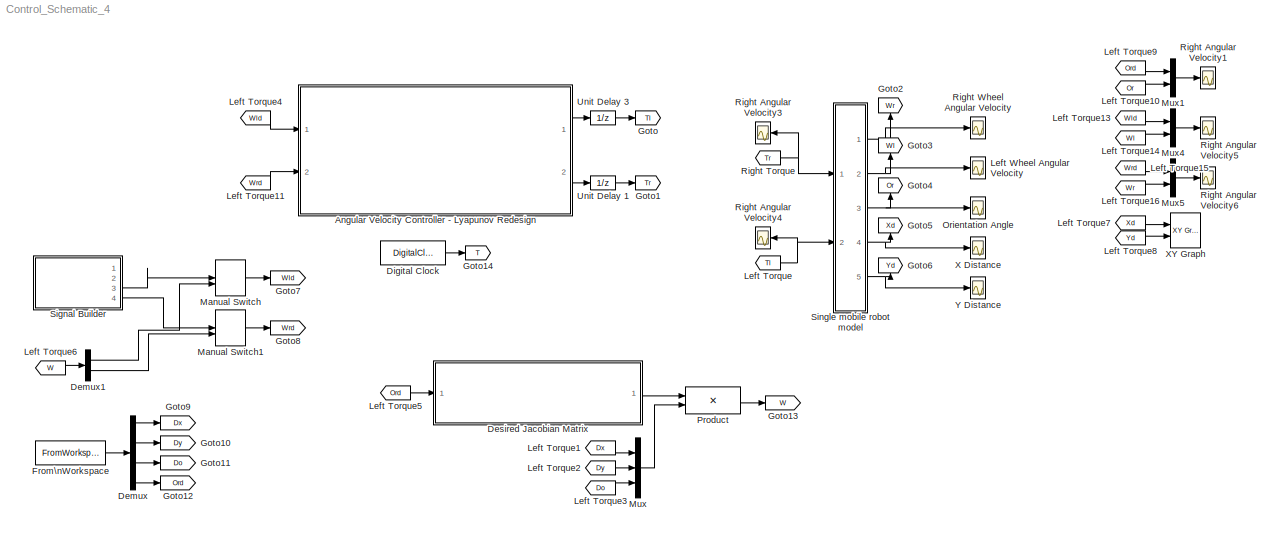
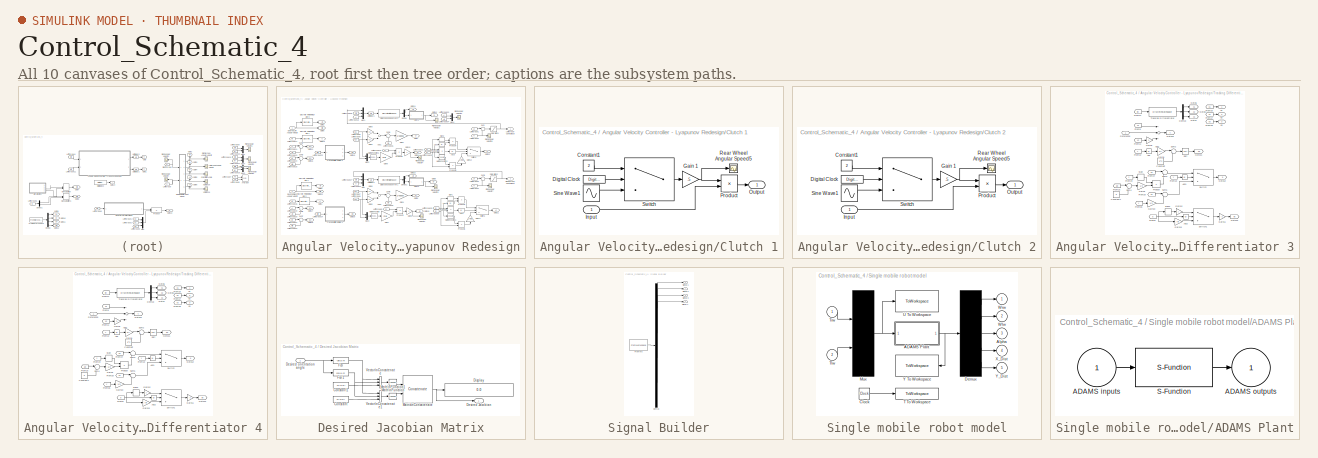
[diagram: thumbnail index - all 10 canvases of the model, root first then tree order]
MODEL Control_Schematic_4
KIND model
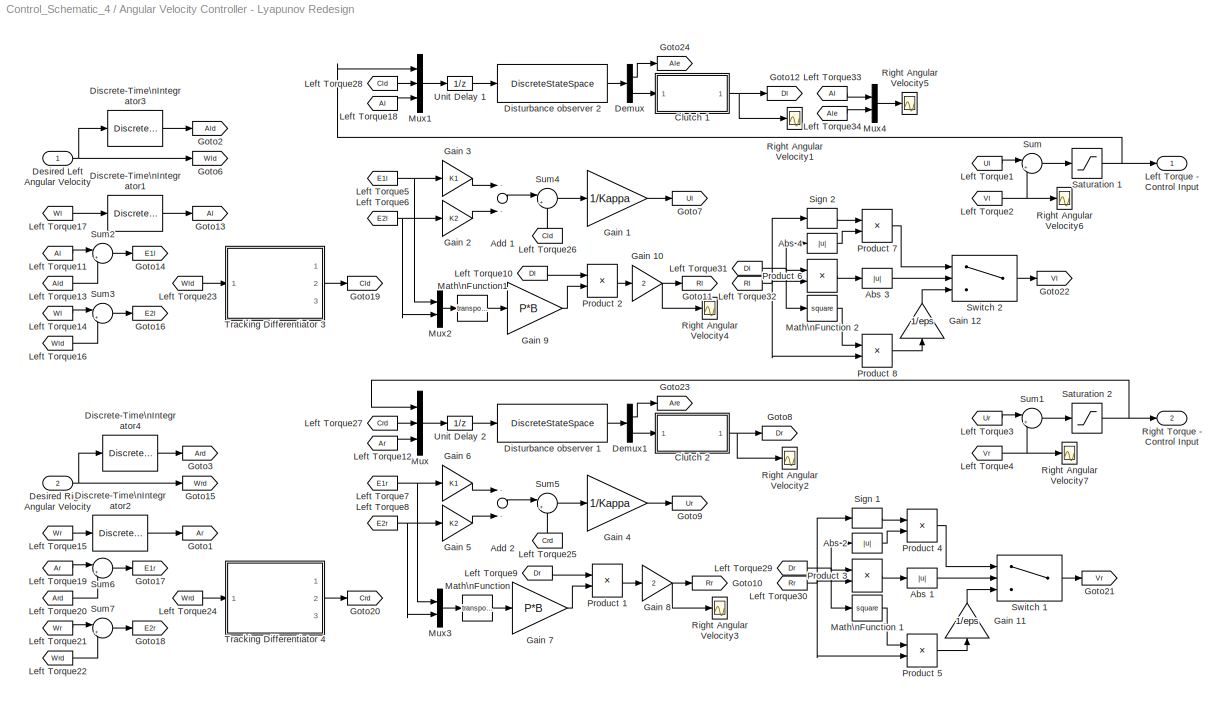
BLOCK [SubSystem] Angular Velocity Controller - Lyapunov Redesign
  Ports = [2, 2]
  RequestExecContextInheritance = off
  SID = 313
BLOCK [Abs] Angular Velocity Controller - Lyapunov Redesign/Abs 1
  SID = 1133
  SaturateOnIntegerOverflow = off
BLOCK [Abs] Angular Velocity Controller - Lyapunov Redesign/Abs 2
  SID = 1137
  SaturateOnIntegerOverflow = off
BLOCK [Abs] Angular Velocity Controller - Lyapunov Redesign/Abs 3
  SID = 1143
  SaturateOnIntegerOverflow = off
BLOCK [Abs] Angular Velocity Controller - Lyapunov Redesign/Abs 4
  SID = 1144
  SaturateOnIntegerOverflow = off
BLOCK [Sum] Angular Velocity Controller - Lyapunov Redesign/Add 1
  InputSameDT = off
  Inputs = --
  OutDataTypeStr = Inherit: Inherit via internal rule
  Ports = [2, 1]
  SID = 974
  SaturateOnIntegerOverflow = off
BLOCK [Sum] Angular Velocity Controller - Lyapunov Redesign/Add 2
  InputSameDT = off
  Inputs = --
  OutDataTypeStr = Inherit: Inherit via internal rule
  Ports = [2, 1]
  SID = 981
  SaturateOnIntegerOverflow = off
BLOCK [SubSystem] Angular Velocity Controller - Lyapunov Redesign/Clutch 1
  Ports = [1, 1]
  RequestExecContextInheritance = off
  SID = 1257
BLOCK [Constant] Angular Velocity Controller - Lyapunov Redesign/Clutch 1/Constant1
  SID = 1259
  Value = 2
BLOCK [DigitalClock] Angular Velocity Controller - Lyapunov Redesign/Clutch 1/Digital Clock
  SID = 1260
  SampleTime = Ts
BLOCK [Gain] Angular Velocity Controller - Lyapunov Redesign/Clutch 1/Gain 1
  Gain = .5
  OutDataTypeStr = Inherit: Inherit via internal rule
  ParamDataTypeStr = Inherit: Inherit via internal rule
  SID = 1261
  SaturateOnIntegerOverflow = off
BLOCK [Inport] Angular Velocity Controller - Lyapunov Redesign/Clutch 1/Input
  IconDisplay = Port number
  SID = 1258
BLOCK [Outport] Angular Velocity Controller - Lyapunov Redesign/Clutch 1/Output
  IconDisplay = Port number
  SID = 1266
BLOCK [Product] Angular Velocity Controller - Lyapunov Redesign/Clutch 1/Product
  InputSameDT = off
  OutDataTypeStr = Inherit: Inherit via internal rule
  Ports = [2, 1]
  RndMeth = Floor
  SID = 1262
  SaturateOnIntegerOverflow = off
BLOCK [Scope] Angular Velocity Controller - Lyapunov Redesign/Clutch 1/Rear Wheel Angular Speed5
  Floating = off
  LimitDataPoints = off
  NumInputPorts = 1
  Ports = [1]
  SID = 1263
  SaveName = ScopeData5
  ShowLegends = off
  YMax = 2
  YMin = 0
  ZoomMode = xonly
BLOCK [Sin] Angular Velocity Controller - Lyapunov Redesign/Clutch 1/Sine Wave1
  Bias = 1
  Frequency = (pi/5)
  Phase = -pi/2
  Ports = [0, 1]
  SID = 1264
  SampleTime = Ts
BLOCK [Switch] Angular Velocity Controller - Lyapunov Redesign/Clutch 1/Switch
  InputSameDT = off
  SID = 1265
  SaturateOnIntegerOverflow = off
  Threshold = 5
BLOCK [SubSystem] Angular Velocity Controller - Lyapunov Redesign/Clutch 2
  Ports = [1, 1]
  RequestExecContextInheritance = off
  SID = 1267
BLOCK [Constant] Angular Velocity Controller - Lyapunov Redesign/Clutch 2/Constant1
  SID = 1269
  Value = 2
BLOCK [DigitalClock] Angular Velocity Controller - Lyapunov Redesign/Clutch 2/Digital Clock
  SID = 1270
  SampleTime = Ts
BLOCK [Gain] Angular Velocity Controller - Lyapunov Redesign/Clutch 2/Gain 1
  Gain = .5
  OutDataTypeStr = Inherit: Inherit via internal rule
  ParamDataTypeStr = Inherit: Inherit via internal rule
  SID = 1271
  SaturateOnIntegerOverflow = off
BLOCK [Inport] Angular Velocity Controller - Lyapunov Redesign/Clutch 2/Input
  IconDisplay = Port number
  SID = 1268
BLOCK [Outport] Angular Velocity Controller - Lyapunov Redesign/Clutch 2/Output
  IconDisplay = Port number
  SID = 1276
BLOCK [Product] Angular Velocity Controller - Lyapunov Redesign/Clutch 2/Product
  InputSameDT = off
  OutDataTypeStr = Inherit: Inherit via internal rule
  Ports = [2, 1]
  RndMeth = Floor
  SID = 1272
  SaturateOnIntegerOverflow = off
BLOCK [Scope] Angular Velocity Controller - Lyapunov Redesign/Clutch 2/Rear Wheel Angular Speed5
  Floating = off
  LimitDataPoints = off
  NumInputPorts = 1
  Ports = [1]
  SID = 1273
  SaveName = ScopeData5
  ShowLegends = off
  YMax = 2
  YMin = 0
  ZoomMode = xonly
BLOCK [Sin] Angular Velocity Controller - Lyapunov Redesign/Clutch 2/Sine Wave1
  Bias = 1
  Frequency = (pi/5)
  Phase = -pi/2
  Ports = [0, 1]
  SID = 1274
  SampleTime = Ts
BLOCK [Switch] Angular Velocity Controller - Lyapunov Redesign/Clutch 2/Switch
  InputSameDT = off
  SID = 1275
  SaturateOnIntegerOverflow = off
  Threshold = 5
BLOCK [Demux] Angular Velocity Controller - Lyapunov Redesign/Demux
  DisplayOption = bar
  Outputs = 2
  Ports = [1, 2]
  SID = 1189
BLOCK [Demux] Angular Velocity Controller - Lyapunov Redesign/Demux1
  DisplayOption = bar
  Outputs = 2
  Ports = [1, 2]
  SID = 1190
BLOCK [Inport] Angular Velocity Controller - Lyapunov Redesign/Desired Left Angular Velocity
  IconDisplay = Port number
  SID = 314
BLOCK [Inport] Angular Velocity Controller - Lyapunov Redesign/Desired Right Angular Velocity
  IconDisplay = Port number
  Port = 2
  SID = 315
BLOCK [DiscreteIntegrator] Angular Velocity Controller - Lyapunov Redesign/Discrete-Time\nIntegrator1
  ICPrevOutput = DiscIntNeverNeededParam
  ICPrevScaledInput = DiscIntNeverNeededParam
  IntegratorMethod = Integration: Trapezoidal
  Ports = [1, 1]
  SID = 778
  SampleTime = Ts
  gainval = 1
BLOCK [DiscreteIntegrator] Angular Velocity Controller - Lyapunov Redesign/Discrete-Time\nIntegrator2
  ICPrevOutput = DiscIntNeverNeededParam
  ICPrevScaledInput = DiscIntNeverNeededParam
  IntegratorMethod = Integration: Trapezoidal
  Ports = [1, 1]
  SID = 855
  SampleTime = Ts
  gainval = 1
BLOCK [DiscreteIntegrator] Angular Velocity Controller - Lyapunov Redesign/Discrete-Time\nIntegrator3
  ICPrevOutput = DiscIntNeverNeededParam
  ICPrevScaledInput = DiscIntNeverNeededParam
  IntegratorMethod = Integration: Trapezoidal
  Ports = [1, 1]
  SID = 782
  SampleTime = Ts
  gainval = 1
BLOCK [DiscreteIntegrator] Angular Velocity Controller - Lyapunov Redesign/Discrete-Time\nIntegrator4
  ICPrevOutput = DiscIntNeverNeededParam
  ICPrevScaledInput = DiscIntNeverNeededParam
  IntegratorMethod = Integration: Trapezoidal
  Ports = [1, 1]
  SID = 783
  SampleTime = Ts
  gainval = 1
BLOCK [DiscreteStateSpace] Angular Velocity Controller - Lyapunov Redesign/Disturbance observer 1
  A = Obz.a
  B = Obz.b
  C = Obz.c
  D = Obz.d
  SID = 957
  SampleTime = Ts
BLOCK [DiscreteStateSpace] Angular Velocity Controller - Lyapunov Redesign/Disturbance observer 2
  A = Obz.a
  B = Obz.b
  C = Obz.c
  D = Obz.d
  SID = 959
  SampleTime = Ts
BLOCK [Gain] Angular Velocity Controller - Lyapunov Redesign/Gain 1
  Gain = 1/Kappa
  OutDataTypeStr = Inherit: Inherit via internal rule
  ParamDataTypeStr = Inherit: Inherit via internal rule
  SID = 975
  SaturateOnIntegerOverflow = off
BLOCK [Gain] Angular Velocity Controller - Lyapunov Redesign/Gain 10
  Gain = 2
  OutDataTypeStr = Inherit: Inherit via internal rule
  ParamDataTypeStr = Inherit: Inherit via internal rule
  SID = 1161
  SaturateOnIntegerOverflow = off
BLOCK [Gain] Angular Velocity Controller - Lyapunov Redesign/Gain 11
  Gain = 1/eps
  OutDataTypeStr = Inherit: Inherit via internal rule
  ParamDataTypeStr = Inherit: Inherit via internal rule
  SID = 1142
  SaturateOnIntegerOverflow = off
BLOCK [Gain] Angular Velocity Controller - Lyapunov Redesign/Gain 12
  Gain = 1/eps
  OutDataTypeStr = Inherit: Inherit via internal rule
  ParamDataTypeStr = Inherit: Inherit via internal rule
  SID = 1145
  SaturateOnIntegerOverflow = off
BLOCK [Gain] Angular Velocity Controller - Lyapunov Redesign/Gain 2
  Gain = K2
  OutDataTypeStr = Inherit: Inherit via internal rule
  ParamDataTypeStr = Inherit: Inherit via internal rule
  SID = 976
  SaturateOnIntegerOverflow = off
BLOCK [Gain] Angular Velocity Controller - Lyapunov Redesign/Gain 3
  Gain = K1
  OutDataTypeStr = Inherit: Inherit via internal rule
  ParamDataTypeStr = Inherit: Inherit via internal rule
  SID = 977
  SaturateOnIntegerOverflow = off
BLOCK [Gain] Angular Velocity Controller - Lyapunov Redesign/Gain 4
  Gain = 1/Kappa
  OutDataTypeStr = Inherit: Inherit via internal rule
  ParamDataTypeStr = Inherit: Inherit via internal rule
  SID = 982
  SaturateOnIntegerOverflow = off
BLOCK [Gain] Angular Velocity Controller - Lyapunov Redesign/Gain 5
  Gain = K2
  OutDataTypeStr = Inherit: Inherit via internal rule
  ParamDataTypeStr = Inherit: Inherit via internal rule
  SID = 983
  SaturateOnIntegerOverflow = off
BLOCK [Gain] Angular Velocity Controller - Lyapunov Redesign/Gain 6
  Gain = K1
  OutDataTypeStr = Inherit: Inherit via internal rule
  ParamDataTypeStr = Inherit: Inherit via internal rule
  SID = 984
  SaturateOnIntegerOverflow = off
BLOCK [Gain] Angular Velocity Controller - Lyapunov Redesign/Gain 7
  Gain = P*B
  Multiplication = Matrix(u*K)
  OutDataTypeStr = Inherit: Inherit via internal rule
  ParamDataTypeStr = Inherit: Inherit via internal rule
  SID = 1157
  SaturateOnIntegerOverflow = off
BLOCK [Gain] Angular Velocity Controller - Lyapunov Redesign/Gain 8
  Gain = 2
  OutDataTypeStr = Inherit: Inherit via internal rule
  ParamDataTypeStr = Inherit: Inherit via internal rule
  SID = 1159
  SaturateOnIntegerOverflow = off
BLOCK [Gain] Angular Velocity Controller - Lyapunov Redesign/Gain 9
  Gain = P*B
  Multiplication = Matrix(u*K)
  OutDataTypeStr = Inherit: Inherit via internal rule
  ParamDataTypeStr = Inherit: Inherit via internal rule
  SID = 1160
  SaturateOnIntegerOverflow = off
BLOCK [Goto] Angular Velocity Controller - Lyapunov Redesign/Goto1
  GotoTag = Ar
  SID = 856
  TagVisibility = global
BLOCK [Goto] Angular Velocity Controller - Lyapunov Redesign/Goto10
  GotoTag = Rr
  SID = 994
  TagVisibility = global
BLOCK [Goto] Angular Velocity Controller - Lyapunov Redesign/Goto11
  GotoTag = Rl
  SID = 997
  TagVisibility = global
BLOCK [Goto] Angular Velocity Controller - Lyapunov Redesign/Goto12
  GotoTag = Dl
  SID = 964
  TagVisibility = global
BLOCK [Goto] Angular Velocity Controller - Lyapunov Redesign/Goto13
  GotoTag = Al
  SID = 780
  TagVisibility = global
BLOCK [Goto] Angular Velocity Controller - Lyapunov Redesign/Goto14
  GotoTag = E1l
  SID = 1004
  TagVisibility = global
BLOCK [Goto] Angular Velocity Controller - Lyapunov Redesign/Goto15
  GotoTag = Wrd
  SID = 952
BLOCK [Goto] Angular Velocity Controller - Lyapunov Redesign/Goto16
  GotoTag = E2l
  SID = 1005
  TagVisibility = global
BLOCK [Goto] Angular Velocity Controller - Lyapunov Redesign/Goto17
  GotoTag = E1r
  SID = 1011
  TagVisibility = global
BLOCK [Goto] Angular Velocity Controller - Lyapunov Redesign/Goto18
  GotoTag = E2r
  SID = 1012
  TagVisibility = global
BLOCK [Goto] Angular Velocity Controller - Lyapunov Redesign/Goto19
  GotoTag = Cld
  SID = 1071
  TagVisibility = global
BLOCK [Goto] Angular Velocity Controller - Lyapunov Redesign/Goto2
  GotoTag = Ald
  SID = 784
  TagVisibility = global
BLOCK [Goto] Angular Velocity Controller - Lyapunov Redesign/Goto20
  GotoTag = Crd
  SID = 1072
  TagVisibility = global
BLOCK [Goto] Angular Velocity Controller - Lyapunov Redesign/Goto21
  GotoTag = Vr
  SID = 1136
  TagVisibility = global
BLOCK [Goto] Angular Velocity Controller - Lyapunov Redesign/Goto22
  GotoTag = Vl
  SID = 1146
  TagVisibility = global
BLOCK [Goto] Angular Velocity Controller - Lyapunov Redesign/Goto23
  GotoTag = Are
  SID = 1191
  TagVisibility = global
BLOCK [Goto] Angular Velocity Controller - Lyapunov Redesign/Goto24
  GotoTag = Ale
  SID = 1192
  TagVisibility = global
BLOCK [Goto] Angular Velocity Controller - Lyapunov Redesign/Goto3
  GotoTag = Ard
  SID = 785
  TagVisibility = global
BLOCK [Goto] Angular Velocity Controller - Lyapunov Redesign/Goto6
  GotoTag = Wld
  SID = 953
BLOCK [Goto] Angular Velocity Controller - Lyapunov Redesign/Goto7
  GotoTag = Ul
  SID = 980
  TagVisibility = global
BLOCK [Goto] Angular Velocity Controller - Lyapunov Redesign/Goto8
  GotoTag = Dr
  SID = 962
  TagVisibility = global
BLOCK [Goto] Angular Velocity Controller - Lyapunov Redesign/Goto9
  GotoTag = Ur
  SID = 985
  TagVisibility = global
BLOCK [Outport] Angular Velocity Controller - Lyapunov Redesign/Left Torque - Control Input
  IconDisplay = Port number
  SID = 317
BLOCK [From] Angular Velocity Controller - Lyapunov Redesign/Left Torque1
  GotoTag = Ul
  SID = 969
  TagVisibility = global
BLOCK [From] Angular Velocity Controller - Lyapunov Redesign/Left Torque10
  GotoTag = Dl
  SID = 998
  TagVisibility = global
BLOCK [From] Angular Velocity Controller - Lyapunov Redesign/Left Torque11
  GotoTag = Al
  SID = 1001
  TagVisibility = global
BLOCK [From] Angular Velocity Controller - Lyapunov Redesign/Left Torque12
  GotoTag = Ar
  SID = 961
  TagVisibility = global
BLOCK [From] Angular Velocity Controller - Lyapunov Redesign/Left Torque13
  GotoTag = Ald
  SID = 1002
  TagVisibility = global
BLOCK [From] Angular Velocity Controller - Lyapunov Redesign/Left Torque14
  GotoTag = Wl
  SID = 1006
  TagVisibility = global
BLOCK [From] Angular Velocity Controller - Lyapunov Redesign/Left Torque15
  GotoTag = Wr
  SID = 955
  TagVisibility = global
BLOCK [From] Angular Velocity Controller - Lyapunov Redesign/Left Torque16
  GotoTag = Wld
  SID = 1007
BLOCK [From] Angular Velocity Controller - Lyapunov Redesign/Left Torque17
  GotoTag = Wl
  SID = 954
  TagVisibility = global
BLOCK [From] Angular Velocity Controller - Lyapunov Redesign/Left Torque18
  GotoTag = Al
  SID = 963
  TagVisibility = global
BLOCK [From] Angular Velocity Controller - Lyapunov Redesign/Left Torque19
  GotoTag = Ar
  SID = 1013
  TagVisibility = global
BLOCK [From] Angular Velocity Controller - Lyapunov Redesign/Left Torque2
  GotoTag = Vl
  SID = 970
  TagVisibility = global
BLOCK [From] Angular Velocity Controller - Lyapunov Redesign/Left Torque20
  GotoTag = Ard
  SID = 1014
  TagVisibility = global
BLOCK [From] Angular Velocity Controller - Lyapunov Redesign/Left Torque21
  GotoTag = Wr
  SID = 1015
  TagVisibility = global
BLOCK [From] Angular Velocity Controller - Lyapunov Redesign/Left Torque22
  GotoTag = Wrd
  SID = 1016
BLOCK [From] Angular Velocity Controller - Lyapunov Redesign/Left Torque23
  GotoTag = Wld
  SID = 1070
BLOCK [From] Angular Velocity Controller - Lyapunov Redesign/Left Torque24
  GotoTag = Wrd
  SID = 1073
BLOCK [From] Angular Velocity Controller - Lyapunov Redesign/Left Torque25
  GotoTag = Crd
  SID = 1125
  TagVisibility = global
BLOCK [From] Angular Velocity Controller - Lyapunov Redesign/Left Torque26
  GotoTag = Cld
  SID = 1126
  TagVisibility = global
BLOCK [From] Angular Velocity Controller - Lyapunov Redesign/Left Torque27
  GotoTag = Crd
  SID = 1127
  TagVisibility = global
BLOCK [From] Angular Velocity Controller - Lyapunov Redesign/Left Torque28
  GotoTag = Cld
  SID = 1128
  TagVisibility = global
BLOCK [From] Angular Velocity Controller - Lyapunov Redesign/Left Torque29
  GotoTag = Dr
  SID = 1131
  TagVisibility = global
BLOCK [From] Angular Velocity Controller - Lyapunov Redesign/Left Torque3
  GotoTag = Ur
  SID = 971
  TagVisibility = global
BLOCK [From] Angular Velocity Controller - Lyapunov Redesign/Left Torque30
  GotoTag = Rr
  SID = 1132
  TagVisibility = global
BLOCK [From] Angular Velocity Controller - Lyapunov Redesign/Left Torque31
  GotoTag = Dl
  SID = 1147
  TagVisibility = global
BLOCK [From] Angular Velocity Controller - Lyapunov Redesign/Left Torque32
  GotoTag = Rl
  SID = 1148
  TagVisibility = global
BLOCK [From] Angular Velocity Controller - Lyapunov Redesign/Left Torque33
  GotoTag = Al
  SID = 1193
  TagVisibility = global
BLOCK [From] Angular Velocity Controller - Lyapunov Redesign/Left Torque34
  GotoTag = Ale
  SID = 1194
  TagVisibility = global
BLOCK [From] Angular Velocity Controller - Lyapunov Redesign/Left Torque4
  GotoTag = Vr
  SID = 972
  TagVisibility = global
BLOCK [From] Angular Velocity Controller - Lyapunov Redesign/Left Torque5
  GotoTag = E1l
  SID = 978
  TagVisibility = global
BLOCK [From] Angular Velocity Controller - Lyapunov Redesign/Left Torque6
  GotoTag = E2l
  SID = 979
  TagVisibility = global
BLOCK [From] Angular Velocity Controller - Lyapunov Redesign/Left Torque7
  GotoTag = E1r
  SID = 986
  TagVisibility = global
BLOCK [From] Angular Velocity Controller - Lyapunov Redesign/Left Torque8
  GotoTag = E2r
  SID = 987
  TagVisibility = global
BLOCK [From] Angular Velocity Controller - Lyapunov Redesign/Left Torque9
  GotoTag = Dr
  SID = 990
  TagVisibility = global
BLOCK [Math] Angular Velocity Controller - Lyapunov Redesign/Math\nFunction
  Operator = transpose
  Ports = [1, 1]
  SID = 1155
BLOCK [Math] Angular Velocity Controller - Lyapunov Redesign/Math\nFunction 1
  Operator = square
  Ports = [1, 1]
  SID = 1140
BLOCK [Math] Angular Velocity Controller - Lyapunov Redesign/Math\nFunction 2
  Operator = square
  Ports = [1, 1]
  SID = 1149
BLOCK [Math] Angular Velocity Controller - Lyapunov Redesign/Math\nFunction1
  Operator = transpose
  Ports = [1, 1]
  SID = 1163
BLOCK [Mux] Angular Velocity Controller - Lyapunov Redesign/Mux
  DisplayOption = bar
  Inputs = 3
  Ports = [3, 1]
  SID = 958
BLOCK [Mux] Angular Velocity Controller - Lyapunov Redesign/Mux1
  DisplayOption = bar
  Inputs = 3
  Ports = [3, 1]
  SID = 960
BLOCK [Mux] Angular Velocity Controller - Lyapunov Redesign/Mux2
  DisplayOption = bar
  Inputs = 2
  Ports = [2, 1]
  SID = 999
BLOCK [Mux] Angular Velocity Controller - Lyapunov Redesign/Mux3
  DisplayOption = bar
  Inputs = 2
  Ports = [2, 1]
  SID = 989
BLOCK [Mux] Angular Velocity Controller - Lyapunov Redesign/Mux4
  DisplayOption = bar
  Inputs = 2
  Ports = [2, 1]
  SID = 1195
BLOCK [Product] Angular Velocity Controller - Lyapunov Redesign/Product 1
  InputSameDT = off
  OutDataTypeStr = Inherit: Inherit via internal rule
  Ports = [2, 1]
  RndMeth = Floor
  SID = 1156
  SaturateOnIntegerOverflow = off
BLOCK [Product] Angular Velocity Controller - Lyapunov Redesign/Product 2
  InputSameDT = off
  OutDataTypeStr = Inherit: Inherit via internal rule
  Ports = [2, 1]
  RndMeth = Floor
  SID = 1164
  SaturateOnIntegerOverflow = off
BLOCK [Product] Angular Velocity Controller - Lyapunov Redesign/Product 3
  InputSameDT = off
  OutDataTypeStr = Inherit: Inherit via internal rule
  Ports = [2, 1]
  RndMeth = Floor
  SID = 1130
  SaturateOnIntegerOverflow = off
BLOCK [Product] Angular Velocity Controller - Lyapunov Redesign/Product 4
  InputSameDT = off
  OutDataTypeStr = Inherit: Inherit via internal rule
  Ports = [2, 1]
  RndMeth = Floor
  SID = 1139
  SaturateOnIntegerOverflow = off
BLOCK [Product] Angular Velocity Controller - Lyapunov Redesign/Product 5
  InputSameDT = off
  OutDataTypeStr = Inherit: Inherit via internal rule
  Ports = [2, 1]
  RndMeth = Floor
  SID = 1141
  SaturateOnIntegerOverflow = off
BLOCK [Product] Angular Velocity Controller - Lyapunov Redesign/Product 6
  InputSameDT = off
  OutDataTypeStr = Inherit: Inherit via internal rule
  Ports = [2, 1]
  RndMeth = Floor
  SID = 1150
  SaturateOnIntegerOverflow = off
BLOCK [Product] Angular Velocity Controller - Lyapunov Redesign/Product 7
  InputSameDT = off
  OutDataTypeStr = Inherit: Inherit via internal rule
  Ports = [2, 1]
  RndMeth = Floor
  SID = 1151
  SaturateOnIntegerOverflow = off
BLOCK [Product] Angular Velocity Controller - Lyapunov Redesign/Product 8
  InputSameDT = off
  OutDataTypeStr = Inherit: Inherit via internal rule
  Ports = [2, 1]
  RndMeth = Floor
  SID = 1152
  SaturateOnIntegerOverflow = off
BLOCK [Scope] Angular Velocity Controller - Lyapunov Redesign/Right Angular Velocity1
  Floating = off
  LimitDataPoints = off
  NumInputPorts = 1
  Ports = [1]
  SID = 1167
  SaveName = ScopeData5
  ShowLegends = off
  YMax = 3
  YMin = -3
BLOCK [Scope] Angular Velocity Controller - Lyapunov Redesign/Right Angular Velocity2
  Floating = off
  LimitDataPoints = off
  NumInputPorts = 1
  Ports = [1]
  SID = 1168
  SaveName = ScopeData6
  ShowLegends = off
  YMax = 3
  YMin = -3
BLOCK [Scope] Angular Velocity Controller - Lyapunov Redesign/Right Angular Velocity3
  Floating = off
  LimitDataPoints = off
  NumInputPorts = 1
  Ports = [1]
  SID = 1169
  SaveName = ScopeData11
  ShowLegends = off
  YMax = 3
  YMin = -3
BLOCK [Scope] Angular Velocity Controller - Lyapunov Redesign/Right Angular Velocity4
  Floating = off
  LimitDataPoints = off
  NumInputPorts = 1
  Ports = [1]
  SID = 1170
  SaveName = ScopeData12
  ShowLegends = off
  YMax = 3
  YMin = -3
BLOCK [Scope] Angular Velocity Controller - Lyapunov Redesign/Right Angular Velocity5
  Floating = off
  LimitDataPoints = off
  NumInputPorts = 1
  Ports = [1]
  SID = 1196
  SaveName = ScopeData13
  ShowLegends = off
  YMax = 1
  YMin = -1
  ZoomMode = yonly
BLOCK [Scope] Angular Velocity Controller - Lyapunov Redesign/Right Angular Velocity6
  Floating = off
  LimitDataPoints = off
  NumInputPorts = 1
  Ports = [1]
  SID = 1199
  SaveName = ScopeData14
  ShowLegends = off
  YMax = 3
  YMin = -3
BLOCK [Scope] Angular Velocity Controller - Lyapunov Redesign/Right Angular Velocity7
  Floating = off
  LimitDataPoints = off
  NumInputPorts = 1
  Ports = [1]
  SID = 1200
  SaveName = ScopeData15
  ShowLegends = off
  YMax = 3
  YMin = -3
BLOCK [Outport] Angular Velocity Controller - Lyapunov Redesign/Right Torque - Control Input
  IconDisplay = Port number
  Port = 2
  SID = 319
BLOCK [Saturate] Angular Velocity Controller - Lyapunov Redesign/Saturation 1
  InputPortMap = u0
  LowerLimit = -20
  Ports = [1, 1]
  SID = 942
  UpperLimit = 20
BLOCK [Saturate] Angular Velocity Controller - Lyapunov Redesign/Saturation 2
  InputPortMap = u0
  LowerLimit = -20
  Ports = [1, 1]
  SID = 943
  UpperLimit = 20
BLOCK [Signum] Angular Velocity Controller - Lyapunov Redesign/Sign 1
  SID = 1138
BLOCK [Signum] Angular Velocity Controller - Lyapunov Redesign/Sign 2
  SID = 1153
BLOCK [Sum] Angular Velocity Controller - Lyapunov Redesign/Sum
  IconShape = round
  InputSameDT = off
  Inputs = |+-
  OutDataTypeStr = Inherit: Inherit via internal rule
  Ports = [2, 1]
  SID = 967
  SaturateOnIntegerOverflow = off
BLOCK [Sum] Angular Velocity Controller - Lyapunov Redesign/Sum1
  IconShape = round
  InputSameDT = off
  Inputs = |+-
  OutDataTypeStr = Inherit: Inherit via internal rule
  Ports = [2, 1]
  SID = 968
  SaturateOnIntegerOverflow = off
BLOCK [Sum] Angular Velocity Controller - Lyapunov Redesign/Sum2
  IconShape = round
  InputSameDT = off
  Inputs = |+-
  OutDataTypeStr = Inherit: Inherit via internal rule
  Ports = [2, 1]
  SID = 1003
  SaturateOnIntegerOverflow = off
BLOCK [Sum] Angular Velocity Controller - Lyapunov Redesign/Sum3
  IconShape = round
  InputSameDT = off
  Inputs = |+-
  OutDataTypeStr = Inherit: Inherit via internal rule
  Ports = [2, 1]
  SID = 1008
  SaturateOnIntegerOverflow = off
BLOCK [Sum] Angular Velocity Controller - Lyapunov Redesign/Sum4
  IconShape = round
  InputSameDT = off
  Inputs = |++
  OutDataTypeStr = Inherit: Inherit via internal rule
  Ports = [2, 1]
  SID = 1009
  SaturateOnIntegerOverflow = off
BLOCK [Sum] Angular Velocity Controller - Lyapunov Redesign/Sum5
  IconShape = round
  InputSameDT = off
  Inputs = |++
  OutDataTypeStr = Inherit: Inherit via internal rule
  Ports = [2, 1]
  SID = 1010
  SaturateOnIntegerOverflow = off
BLOCK [Sum] Angular Velocity Controller - Lyapunov Redesign/Sum6
  IconShape = round
  InputSameDT = off
  Inputs = |+-
  OutDataTypeStr = Inherit: Inherit via internal rule
  Ports = [2, 1]
  SID = 1017
  SaturateOnIntegerOverflow = off
BLOCK [Sum] Angular Velocity Controller - Lyapunov Redesign/Sum7
  IconShape = round
  InputSameDT = off
  Inputs = |+-
  OutDataTypeStr = Inherit: Inherit via internal rule
  Ports = [2, 1]
  SID = 1018
  SaturateOnIntegerOverflow = off
BLOCK [Switch] Angular Velocity Controller - Lyapunov Redesign/Switch 1
  InputSameDT = off
  SID = 1135
  SaturateOnIntegerOverflow = off
  Threshold = eps
BLOCK [Switch] Angular Velocity Controller - Lyapunov Redesign/Switch 2
  InputSameDT = off
  SID = 1154
  SaturateOnIntegerOverflow = off
  Threshold = eps
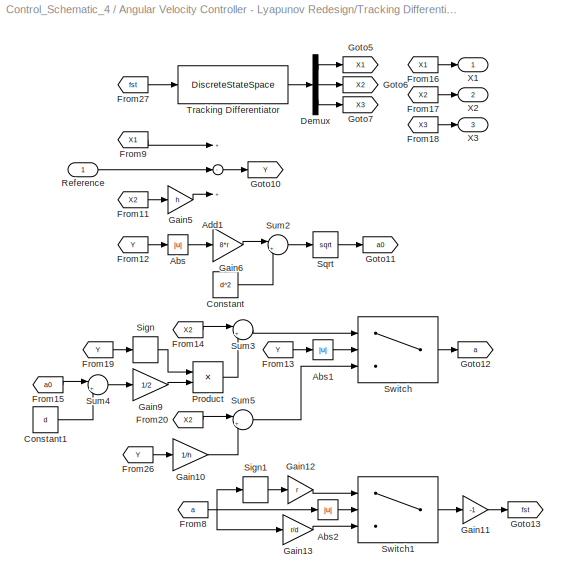
BLOCK [SubSystem] Angular Velocity Controller - Lyapunov Redesign/Tracking Differentiator 3
  Ports = [1, 3]
  RequestExecContextInheritance = off
  SID = 1019
BLOCK [Abs] Angular Velocity Controller - Lyapunov Redesign/Tracking Differentiator 3/Abs
  SID = 1021
  SaturateOnIntegerOverflow = off
BLOCK [Abs] Angular Velocity Controller - Lyapunov Redesign/Tracking Differentiator 3/Abs1
  SID = 1022
  SaturateOnIntegerOverflow = off
BLOCK [Abs] Angular Velocity Controller - Lyapunov Redesign/Tracking Differentiator 3/Abs2
  SID = 1023
  SaturateOnIntegerOverflow = off
BLOCK [Sum] Angular Velocity Controller - Lyapunov Redesign/Tracking Differentiator 3/Add1
  InputSameDT = off
  Inputs = +-+
  OutDataTypeStr = Inherit: Inherit via internal rule
  Ports = [3, 1]
  SID = 1024
  SaturateOnIntegerOverflow = off
BLOCK [Constant] Angular Velocity Controller - Lyapunov Redesign/Tracking Differentiator 3/Constant
  SID = 1025
  Value = d^2
BLOCK [Constant] Angular Velocity Controller - Lyapunov Redesign/Tracking Differentiator 3/Constant1
  SID = 1026
  Value = d
BLOCK [Demux] Angular Velocity Controller - Lyapunov Redesign/Tracking Differentiator 3/Demux
  DisplayOption = bar
  Outputs = 3
  Ports = [1, 3]
  SID = 1027
BLOCK [From] Angular Velocity Controller - Lyapunov Redesign/Tracking Differentiator 3/From11
  GotoTag = X2
  SID = 1028
BLOCK [From] Angular Velocity Controller - Lyapunov Redesign/Tracking Differentiator 3/From12
  GotoTag = Y
  SID = 1029
BLOCK [From] Angular Velocity Controller - Lyapunov Redesign/Tracking Differentiator 3/From13
  GotoTag = Y
  SID = 1030
BLOCK [From] Angular Velocity Controller - Lyapunov Redesign/Tracking Differentiator 3/From14
  GotoTag = X2
  SID = 1031
BLOCK [From] Angular Velocity Controller - Lyapunov Redesign/Tracking Differentiator 3/From15
  GotoTag = a0
  SID = 1032
BLOCK [From] Angular Velocity Controller - Lyapunov Redesign/Tracking Differentiator 3/From16
  GotoTag = X1
  SID = 1033
BLOCK [From] Angular Velocity Controller - Lyapunov Redesign/Tracking Differentiator 3/From17
  GotoTag = X2
  SID = 1034
BLOCK [From] Angular Velocity Controller - Lyapunov Redesign/Tracking Differentiator 3/From18
  GotoTag = X3
  SID = 1035
BLOCK [From] Angular Velocity Controller - Lyapunov Redesign/Tracking Differentiator 3/From19
  GotoTag = Y
  SID = 1036
BLOCK [From] Angular Velocity Controller - Lyapunov Redesign/Tracking Differentiator 3/From20
  GotoTag = X2
  SID = 1037
BLOCK [From] Angular Velocity Controller - Lyapunov Redesign/Tracking Differentiator 3/From26
  GotoTag = Y
  SID = 1038
BLOCK [From] Angular Velocity Controller - Lyapunov Redesign/Tracking Differentiator 3/From27
  GotoTag = fst
  SID = 1039
BLOCK [From] Angular Velocity Controller - Lyapunov Redesign/Tracking Differentiator 3/From8
  GotoTag = a
  SID = 1040
BLOCK [From] Angular Velocity Controller - Lyapunov Redesign/Tracking Differentiator 3/From9
  GotoTag = X1
  SID = 1041
BLOCK [Gain] Angular Velocity Controller - Lyapunov Redesign/Tracking Differentiator 3/Gain10
  Gain = 1/h
  OutDataTypeStr = Inherit: Inherit via internal rule
  ParamDataTypeStr = Inherit: Inherit via internal rule
  SID = 1042
  SaturateOnIntegerOverflow = off
BLOCK [Gain] Angular Velocity Controller - Lyapunov Redesign/Tracking Differentiator 3/Gain11
  Gain = -1
  OutDataTypeStr = Inherit: Inherit via internal rule
  ParamDataTypeStr = Inherit: Inherit via internal rule
  SID = 1043
  SaturateOnIntegerOverflow = off
BLOCK [Gain] Angular Velocity Controller - Lyapunov Redesign/Tracking Differentiator 3/Gain12
  Gain = r
  OutDataTypeStr = Inherit: Inherit via internal rule
  ParamDataTypeStr = Inherit: Inherit via internal rule
  SID = 1044
  SaturateOnIntegerOverflow = off
BLOCK [Gain] Angular Velocity Controller - Lyapunov Redesign/Tracking Differentiator 3/Gain13
  Gain = r/d
  OutDataTypeStr = Inherit: Inherit via internal rule
  ParamDataTypeStr = Inherit: Inherit via internal rule
  SID = 1045
  SaturateOnIntegerOverflow = off
BLOCK [Gain] Angular Velocity Controller - Lyapunov Redesign/Tracking Differentiator 3/Gain5
  Gain = h
  OutDataTypeStr = Inherit: Inherit via internal rule
  ParamDataTypeStr = Inherit: Inherit via internal rule
  SID = 1046
  SaturateOnIntegerOverflow = off
BLOCK [Gain] Angular Velocity Controller - Lyapunov Redesign/Tracking Differentiator 3/Gain6
  Gain = 8*r
  OutDataTypeStr = Inherit: Inherit via internal rule
  ParamDataTypeStr = Inherit: Inherit via internal rule
  SID = 1047
  SaturateOnIntegerOverflow = off
BLOCK [Gain] Angular Velocity Controller - Lyapunov Redesign/Tracking Differentiator 3/Gain9
  Gain = 1/2
  OutDataTypeStr = Inherit: Inherit via internal rule
  ParamDataTypeStr = Inherit: Inherit via internal rule
  SID = 1048
  SaturateOnIntegerOverflow = off
BLOCK [Goto] Angular Velocity Controller - Lyapunov Redesign/Tracking Differentiator 3/Goto10
  GotoTag = Y
  SID = 1049
BLOCK [Goto] Angular Velocity Controller - Lyapunov Redesign/Tracking Differentiator 3/Goto11
  GotoTag = a0
  SID = 1050
BLOCK [Goto] Angular Velocity Controller - Lyapunov Redesign/Tracking Differentiator 3/Goto12
  GotoTag = a
  SID = 1051
BLOCK [Goto] Angular Velocity Controller - Lyapunov Redesign/Tracking Differentiator 3/Goto13
  GotoTag = fst
  SID = 1052
BLOCK [Goto] Angular Velocity Controller - Lyapunov Redesign/Tracking Differentiator 3/Goto5
  GotoTag = X1
  SID = 1053
BLOCK [Goto] Angular Velocity Controller - Lyapunov Redesign/Tracking Differentiator 3/Goto6
  GotoTag = X2
  SID = 1054
BLOCK [Goto] Angular Velocity Controller - Lyapunov Redesign/Tracking Differentiator 3/Goto7
  GotoTag = X3
  SID = 1055
BLOCK [Product] Angular Velocity Controller - Lyapunov Redesign/Tracking Differentiator 3/Product
  InputSameDT = off
  OutDataTypeStr = Inherit: Inherit via internal rule
  Ports = [2, 1]
  RndMeth = Floor
  SID = 1056
  SaturateOnIntegerOverflow = off
BLOCK [Inport] Angular Velocity Controller - Lyapunov Redesign/Tracking Differentiator 3/Reference
  IconDisplay = Port number
  SID = 1020
BLOCK [Signum] Angular Velocity Controller - Lyapunov Redesign/Tracking Differentiator 3/Sign
  SID = 1057
BLOCK [Signum] Angular Velocity Controller - Lyapunov Redesign/Tracking Differentiator 3/Sign1
  SID = 1058
BLOCK [Sqrt] Angular Velocity Controller - Lyapunov Redesign/Tracking Differentiator 3/Sqrt
  SID = 1059
BLOCK [Sum] Angular Velocity Controller - Lyapunov Redesign/Tracking Differentiator 3/Sum2
  IconShape = round
  InputSameDT = off
  Inputs = |++
  OutDataTypeStr = Inherit: Inherit via internal rule
  Ports = [2, 1]
  SID = 1060
  SaturateOnIntegerOverflow = off
BLOCK [Sum] Angular Velocity Controller - Lyapunov Redesign/Tracking Differentiator 3/Sum3
  IconShape = round
  InputSameDT = off
  Inputs = |++
  OutDataTypeStr = Inherit: Inherit via internal rule
  Ports = [2, 1]
  SID = 1061
  SaturateOnIntegerOverflow = off
BLOCK [Sum] Angular Velocity Controller - Lyapunov Redesign/Tracking Differentiator 3/Sum4
  IconShape = round
  InputSameDT = off
  Inputs = |+-
  OutDataTypeStr = Inherit: Inherit via internal rule
  Ports = [2, 1]
  SID = 1062
  SaturateOnIntegerOverflow = off
BLOCK [Sum] Angular Velocity Controller - Lyapunov Redesign/Tracking Differentiator 3/Sum5
  IconShape = round
  InputSameDT = off
  Inputs = |++
  OutDataTypeStr = Inherit: Inherit via internal rule
  Ports = [2, 1]
  SID = 1063
  SaturateOnIntegerOverflow = off
BLOCK [Switch] Angular Velocity Controller - Lyapunov Redesign/Tracking Differentiator 3/Switch
  Criteria = u2 > Threshold
  InputSameDT = off
  SID = 1064
  SaturateOnIntegerOverflow = off
  Threshold = d0
BLOCK [Switch] Angular Velocity Controller - Lyapunov Redesign/Tracking Differentiator 3/Switch1
  Criteria = u2 > Threshold
  InputSameDT = off
  SID = 1065
  SaturateOnIntegerOverflow = off
  Threshold = d
BLOCK [DiscreteStateSpace] Angular Velocity Controller - Lyapunov Redesign/Tracking Differentiator 3/Tracking Differentiator
  A = TD.a
  B = TD.b
  C = TD.c
  D = TD.d
  SID = 1066
  SampleTime = Ts
BLOCK [Outport] Angular Velocity Controller - Lyapunov Redesign/Tracking Differentiator 3/X1
  IconDisplay = Port number
  SID = 1067
BLOCK [Outport] Angular Velocity Controller - Lyapunov Redesign/Tracking Differentiator 3/X2
  IconDisplay = Port number
  Port = 2
  SID = 1068
BLOCK [Outport] Angular Velocity Controller - Lyapunov Redesign/Tracking Differentiator 3/X3
  IconDisplay = Port number
  Port = 3
  SID = 1069
BLOCK [SubSystem] Angular Velocity Controller - Lyapunov Redesign/Tracking Differentiator 4
  Ports = [1, 3]
  RequestExecContextInheritance = off
  SID = 1074
BLOCK [Abs] Angular Velocity Controller - Lyapunov Redesign/Tracking Differentiator 4/Abs
  SID = 1076
  SaturateOnIntegerOverflow = off
BLOCK [Abs] Angular Velocity Controller - Lyapunov Redesign/Tracking Differentiator 4/Abs1
  SID = 1077
  SaturateOnIntegerOverflow = off
BLOCK [Abs] Angular Velocity Controller - Lyapunov Redesign/Tracking Differentiator 4/Abs2
  SID = 1078
  SaturateOnIntegerOverflow = off
BLOCK [Sum] Angular Velocity Controller - Lyapunov Redesign/Tracking Differentiator 4/Add1
  InputSameDT = off
  Inputs = +-+
  OutDataTypeStr = Inherit: Inherit via internal rule
  Ports = [3, 1]
  SID = 1079
  SaturateOnIntegerOverflow = off
BLOCK [Constant] Angular Velocity Controller - Lyapunov Redesign/Tracking Differentiator 4/Constant
  SID = 1080
  Value = d^2
BLOCK [Constant] Angular Velocity Controller - Lyapunov Redesign/Tracking Differentiator 4/Constant1
  SID = 1081
  Value = d
BLOCK [Demux] Angular Velocity Controller - Lyapunov Redesign/Tracking Differentiator 4/Demux
  DisplayOption = bar
  Outputs = 3
  Ports = [1, 3]
  SID = 1082
BLOCK [From] Angular Velocity Controller - Lyapunov Redesign/Tracking Differentiator 4/From11
  GotoTag = X2
  SID = 1083
BLOCK [From] Angular Velocity Controller - Lyapunov Redesign/Tracking Differentiator 4/From12
  GotoTag = Y
  SID = 1084
BLOCK [From] Angular Velocity Controller - Lyapunov Redesign/Tracking Differentiator 4/From13
  GotoTag = Y
  SID = 1085
BLOCK [From] Angular Velocity Controller - Lyapunov Redesign/Tracking Differentiator 4/From14
  GotoTag = X2
  SID = 1086
BLOCK [From] Angular Velocity Controller - Lyapunov Redesign/Tracking Differentiator 4/From15
  GotoTag = a0
  SID = 1087
BLOCK [From] Angular Velocity Controller - Lyapunov Redesign/Tracking Differentiator 4/From16
  GotoTag = X1
  SID = 1088
BLOCK [From] Angular Velocity Controller - Lyapunov Redesign/Tracking Differentiator 4/From17
  GotoTag = X2
  SID = 1089
BLOCK [From] Angular Velocity Controller - Lyapunov Redesign/Tracking Differentiator 4/From18
  GotoTag = X3
  SID = 1090
BLOCK [From] Angular Velocity Controller - Lyapunov Redesign/Tracking Differentiator 4/From19
  GotoTag = Y
  SID = 1091
BLOCK [From] Angular Velocity Controller - Lyapunov Redesign/Tracking Differentiator 4/From20
  GotoTag = X2
  SID = 1092
BLOCK [From] Angular Velocity Controller - Lyapunov Redesign/Tracking Differentiator 4/From26
  GotoTag = Y
  SID = 1093
BLOCK [From] Angular Velocity Controller - Lyapunov Redesign/Tracking Differentiator 4/From27
  GotoTag = fst
  SID = 1094
BLOCK [From] Angular Velocity Controller - Lyapunov Redesign/Tracking Differentiator 4/From8
  GotoTag = a
  SID = 1095
BLOCK [From] Angular Velocity Controller - Lyapunov Redesign/Tracking Differentiator 4/From9
  GotoTag = X1
  SID = 1096
BLOCK [Gain] Angular Velocity Controller - Lyapunov Redesign/Tracking Differentiator 4/Gain10
  Gain = 1/h
  OutDataTypeStr = Inherit: Inherit via internal rule
  ParamDataTypeStr = Inherit: Inherit via internal rule
  SID = 1097
  SaturateOnIntegerOverflow = off
BLOCK [Gain] Angular Velocity Controller - Lyapunov Redesign/Tracking Differentiator 4/Gain11
  Gain = -1
  OutDataTypeStr = Inherit: Inherit via internal rule
  ParamDataTypeStr = Inherit: Inherit via internal rule
  SID = 1098
  SaturateOnIntegerOverflow = off
BLOCK [Gain] Angular Velocity Controller - Lyapunov Redesign/Tracking Differentiator 4/Gain12
  Gain = r
  OutDataTypeStr = Inherit: Inherit via internal rule
  ParamDataTypeStr = Inherit: Inherit via internal rule
  SID = 1099
  SaturateOnIntegerOverflow = off
BLOCK [Gain] Angular Velocity Controller - Lyapunov Redesign/Tracking Differentiator 4/Gain13
  Gain = r/d
  OutDataTypeStr = Inherit: Inherit via internal rule
  ParamDataTypeStr = Inherit: Inherit via internal rule
  SID = 1100
  SaturateOnIntegerOverflow = off
BLOCK [Gain] Angular Velocity Controller - Lyapunov Redesign/Tracking Differentiator 4/Gain5
  Gain = h
  OutDataTypeStr = Inherit: Inherit via internal rule
  ParamDataTypeStr = Inherit: Inherit via internal rule
  SID = 1101
  SaturateOnIntegerOverflow = off
BLOCK [Gain] Angular Velocity Controller - Lyapunov Redesign/Tracking Differentiator 4/Gain6
  Gain = 8*r
  OutDataTypeStr = Inherit: Inherit via internal rule
  ParamDataTypeStr = Inherit: Inherit via internal rule
  SID = 1102
  SaturateOnIntegerOverflow = off
BLOCK [Gain] Angular Velocity Controller - Lyapunov Redesign/Tracking Differentiator 4/Gain9
  Gain = 1/2
  OutDataTypeStr = Inherit: Inherit via internal rule
  ParamDataTypeStr = Inherit: Inherit via internal rule
  SID = 1103
  SaturateOnIntegerOverflow = off
BLOCK [Goto] Angular Velocity Controller - Lyapunov Redesign/Tracking Differentiator 4/Goto10
  GotoTag = Y
  SID = 1104
BLOCK [Goto] Angular Velocity Controller - Lyapunov Redesign/Tracking Differentiator 4/Goto11
  GotoTag = a0
  SID = 1105
BLOCK [Goto] Angular Velocity Controller - Lyapunov Redesign/Tracking Differentiator 4/Goto12
  GotoTag = a
  SID = 1106
BLOCK [Goto] Angular Velocity Controller - Lyapunov Redesign/Tracking Differentiator 4/Goto13
  GotoTag = fst
  SID = 1107
BLOCK [Goto] Angular Velocity Controller - Lyapunov Redesign/Tracking Differentiator 4/Goto5
  GotoTag = X1
  SID = 1108
BLOCK [Goto] Angular Velocity Controller - Lyapunov Redesign/Tracking Differentiator 4/Goto6
  GotoTag = X2
  SID = 1109
BLOCK [Goto] Angular Velocity Controller - Lyapunov Redesign/Tracking Differentiator 4/Goto7
  GotoTag = X3
  SID = 1110
BLOCK [Product] Angular Velocity Controller - Lyapunov Redesign/Tracking Differentiator 4/Product
  InputSameDT = off
  OutDataTypeStr = Inherit: Inherit via internal rule
  Ports = [2, 1]
  RndMeth = Floor
  SID = 1111
  SaturateOnIntegerOverflow = off
BLOCK [Inport] Angular Velocity Controller - Lyapunov Redesign/Tracking Differentiator 4/Reference
  IconDisplay = Port number
  SID = 1075
BLOCK [Signum] Angular Velocity Controller - Lyapunov Redesign/Tracking Differentiator 4/Sign
  SID = 1112
BLOCK [Signum] Angular Velocity Controller - Lyapunov Redesign/Tracking Differentiator 4/Sign1
  SID = 1113
BLOCK [Sqrt] Angular Velocity Controller - Lyapunov Redesign/Tracking Differentiator 4/Sqrt
  SID = 1114
BLOCK [Sum] Angular Velocity Controller - Lyapunov Redesign/Tracking Differentiator 4/Sum2
  IconShape = round
  InputSameDT = off
  Inputs = |++
  OutDataTypeStr = Inherit: Inherit via internal rule
  Ports = [2, 1]
  SID = 1115
  SaturateOnIntegerOverflow = off
BLOCK [Sum] Angular Velocity Controller - Lyapunov Redesign/Tracking Differentiator 4/Sum3
  IconShape = round
  InputSameDT = off
  Inputs = |++
  OutDataTypeStr = Inherit: Inherit via internal rule
  Ports = [2, 1]
  SID = 1116
  SaturateOnIntegerOverflow = off
BLOCK [Sum] Angular Velocity Controller - Lyapunov Redesign/Tracking Differentiator 4/Sum4
  IconShape = round
  InputSameDT = off
  Inputs = |+-
  OutDataTypeStr = Inherit: Inherit via internal rule
  Ports = [2, 1]
  SID = 1117
  SaturateOnIntegerOverflow = off
BLOCK [Sum] Angular Velocity Controller - Lyapunov Redesign/Tracking Differentiator 4/Sum5
  IconShape = round
  InputSameDT = off
  Inputs = |++
  OutDataTypeStr = Inherit: Inherit via internal rule
  Ports = [2, 1]
  SID = 1118
  SaturateOnIntegerOverflow = off
BLOCK [Switch] Angular Velocity Controller - Lyapunov Redesign/Tracking Differentiator 4/Switch
  Criteria = u2 > Threshold
  InputSameDT = off
  SID = 1119
  SaturateOnIntegerOverflow = off
  Threshold = d0
BLOCK [Switch] Angular Velocity Controller - Lyapunov Redesign/Tracking Differentiator 4/Switch1
  Criteria = u2 > Threshold
  InputSameDT = off
  SID = 1120
  SaturateOnIntegerOverflow = off
  Threshold = d
BLOCK [DiscreteStateSpace] Angular Velocity Controller - Lyapunov Redesign/Tracking Differentiator 4/Tracking Differentiator
  A = TD.a
  B = TD.b
  C = TD.c
  D = TD.d
  SID = 1121
  SampleTime = Ts
BLOCK [Outport] Angular Velocity Controller - Lyapunov Redesign/Tracking Differentiator 4/X1
  IconDisplay = Port number
  SID = 1122
BLOCK [Outport] Angular Velocity Controller - Lyapunov Redesign/Tracking Differentiator 4/X2
  IconDisplay = Port number
  Port = 2
  SID = 1123
BLOCK [Outport] Angular Velocity Controller - Lyapunov Redesign/Tracking Differentiator 4/X3
  IconDisplay = Port number
  Port = 3
  SID = 1124
BLOCK [UnitDelay] Angular Velocity Controller - Lyapunov Redesign/Unit Delay 1
  InputProcessing = Elements as channels (sample based)
  SID = 1165
  SampleTime = -1
BLOCK [UnitDelay] Angular Velocity Controller - Lyapunov Redesign/Unit Delay 2
  InputProcessing = Elements as channels (sample based)
  SID = 1166
  SampleTime = -1
BLOCK [Demux] Demux
  DisplayOption = bar
  Ports = [1, 4]
  SID = 358
BLOCK [Demux] Demux1
  DisplayOption = bar
  Outputs = 2
  Ports = [1, 2]
  SID = 387
BLOCK [SubSystem] Desired Jacobian Matrix
  Ports = [1, 1]
  RequestExecContextInheritance = off
  SID = 380
BLOCK [Constant] Desired Jacobian Matrix/Constant
  SID = 371
  Value = b/(2*R)
BLOCK [Constant] Desired Jacobian Matrix/Constant1
  SID = 372
  Value = -b/(2*R)
BLOCK [Outport] Desired Jacobian Matrix/Desired Jacobian
  IconDisplay = Port number
  SID = 382
BLOCK [Inport] Desired Jacobian Matrix/Desired orientation angle
  IconDisplay = Port number
  SID = 381
BLOCK [Display] Desired Jacobian Matrix/Display
  Decimation = 1
  Ports = [1]
  SID = 376
BLOCK [Fcn] Desired Jacobian Matrix/Fcn
  Expr = -sin(u)/R
  SID = 369
BLOCK [Fcn] Desired Jacobian Matrix/Fcn1
  Expr = cos(u)/R
  SID = 370
BLOCK [Math] Desired Jacobian Matrix/Math\nFunction
  Operator = transpose
  Ports = [1, 1]
  SID = 377
BLOCK [Math] Desired Jacobian Matrix/Math\nFunction1
  Operator = transpose
  Ports = [1, 1]
  SID = 378
BLOCK [Concatenate] Desired Jacobian Matrix/Matrix\nConcatenate
  Mode = Multidimensional array
  Ports = [2, 1]
  SID = 373
BLOCK [Concatenate] Desired Jacobian Matrix/Vector\nConcatenate
  NumInputs = 3
  Ports = [3, 1]
  SID = 374
BLOCK [Concatenate] Desired Jacobian Matrix/Vector\nConcatenate1
  NumInputs = 3
  Ports = [3, 1]
  SID = 375
BLOCK [DigitalClock] Digital Clock
  SID = 755
  SampleTime = Ts
BLOCK [FromWorkspace] From\nWorkspace
  SID = 357
  SampleTime = Ts
  VariableName = desired_path
  ZeroCross = on
BLOCK [Goto] Goto
  GotoTag = Tl
  SID = 28
  TagVisibility = global
BLOCK [Goto] Goto1
  GotoTag = Tr
  SID = 181
  TagVisibility = global
BLOCK [Goto] Goto10
  GotoTag = Dy
  SID = 360
  TagVisibility = global
BLOCK [Goto] Goto11
  GotoTag = Do
  SID = 361
  TagVisibility = global
BLOCK [Goto] Goto12
  GotoTag = Ord
  SID = 362
  TagVisibility = global
BLOCK [Goto] Goto13
  GotoTag = W
  SID = 385
  TagVisibility = global
BLOCK [Goto] Goto14
  GotoTag = T
  SID = 756
  TagVisibility = global
BLOCK [Goto] Goto2
  GotoTag = Wr
  SID = 30
  TagVisibility = global
BLOCK [Goto] Goto3
  GotoTag = Wl
  SID = 31
  TagVisibility = global
BLOCK [Goto] Goto4
  GotoTag = Or
  SID = 32
  TagVisibility = global
BLOCK [Goto] Goto5
  GotoTag = Xd
  SID = 33
  TagVisibility = global
BLOCK [Goto] Goto6
  GotoTag = Yd
  SID = 34
  TagVisibility = global
BLOCK [Goto] Goto7
  GotoTag = Wld
  SID = 98
  TagVisibility = global
BLOCK [Goto] Goto8
  GotoTag = Wrd
  SID = 100
  TagVisibility = global
BLOCK [Goto] Goto9
  GotoTag = Dx
  SID = 359
  TagVisibility = global
BLOCK [From] Left Torque
  GotoTag = Tl
  SID = 25
  TagVisibility = global
BLOCK [From] Left Torque1
  GotoTag = Dx
  SID = 363
  TagVisibility = global
BLOCK [From] Left Torque10
  GotoTag = Or
  SID = 762
  TagVisibility = global
BLOCK [From] Left Torque11
  GotoTag = Wrd
  SID = 183
  TagVisibility = global
BLOCK [From] Left Torque13
  GotoTag = Wld
  SID = 272
  TagVisibility = global
BLOCK [From] Left Torque14
  GotoTag = Wl
  SID = 273
  TagVisibility = global
BLOCK [From] Left Torque15
  GotoTag = Wrd
  SID = 275
  TagVisibility = global
BLOCK [From] Left Torque16
  GotoTag = Wr
  SID = 276
  TagVisibility = global
BLOCK [From] Left Torque2
  GotoTag = Dy
  SID = 364
  TagVisibility = global
BLOCK [From] Left Torque3
  GotoTag = Do
  SID = 365
  TagVisibility = global
BLOCK [From] Left Torque4
  GotoTag = Wld
  SID = 99
  TagVisibility = global
BLOCK [From] Left Torque5
  GotoTag = Ord
  SID = 366
  TagVisibility = global
BLOCK [From] Left Torque6
  GotoTag = W
  SID = 386
  TagVisibility = global
BLOCK [From] Left Torque7
  GotoTag = Xd
  SID = 461
  TagVisibility = global
BLOCK [From] Left Torque8
  GotoTag = Yd
  SID = 462
  TagVisibility = global
BLOCK [From] Left Torque9
  GotoTag = Ord
  SID = 761
  TagVisibility = global
BLOCK [Scope] Left Wheel Angular Velocity
  Floating = off
  LimitDataPoints = off
  NumInputPorts = 1
  Ports = [1]
  SID = 2
  SaveName = ScopeData2
  ShowLegends = off
BLOCK [ManualSwitch] Manual Switch
  CurrentSetting = 0
  SID = 355
BLOCK [ManualSwitch] Manual Switch1
  CurrentSetting = 0
  SID = 356
BLOCK [Mux] Mux
  DisplayOption = bar
  Inputs = 3
  Ports = [3, 1]
  SID = 367
BLOCK [Mux] Mux1
  DisplayOption = bar
  Inputs = 2
  Ports = [2, 1]
  SID = 763
BLOCK [Mux] Mux4
  DisplayOption = bar
  Inputs = 2
  Ports = [2, 1]
  SID = 271
BLOCK [Mux] Mux5
  DisplayOption = bar
  Inputs = 2
  Ports = [2, 1]
  SID = 277
BLOCK [Scope] Orientation Angle
  Floating = off
  LimitDataPoints = off
  NumInputPorts = 1
  Ports = [1]
  SID = 1
  SaveName = ScopeData1
  ShowLegends = off
  YMax = 4
  YMin = -4
BLOCK [Product] Product
  InputSameDT = off
  Multiplication = Matrix(*)
  OutDataTypeStr = Inherit: Inherit via internal rule
  Ports = [2, 1]
  RndMeth = Floor
  SID = 383
  SaturateOnIntegerOverflow = off
BLOCK [Scope] Right Angular Velocity1
  Floating = off
  LimitDataPoints = off
  NumInputPorts = 1
  Ports = [1]
  SID = 764
  SaveName = ScopeData27
  ShowLegends = off
  YMax = 3
  YMin = -3
BLOCK [Scope] Right Angular Velocity3
  Floating = off
  LimitDataPoints = off
  NumInputPorts = 1
  Ports = [1]
  SID = 269
  SaveName = ScopeData7
  ShowLegends = off
  YMax = 25
  YMin = -25
  ZoomMode = xonly
BLOCK [Scope] Right Angular Velocity4
  Floating = off
  LimitDataPoints = off
  NumInputPorts = 1
  Ports = [1]
  SID = 270
  SaveName = ScopeData8
  ShowLegends = off
  YMax = 25
  YMin = -25
BLOCK [Scope] Right Angular Velocity5
  Floating = off
  LimitDataPoints = off
  NumInputPorts = 1
  Ports = [1]
  SID = 274
  SaveName = ScopeData9
  ShowLegends = off
  YMax = 1
  YMin = -1
BLOCK [Scope] Right Angular Velocity6
  Floating = off
  LimitDataPoints = off
  NumInputPorts = 1
  Ports = [1]
  SID = 278
  SaveName = ScopeData10
  ShowLegends = off
  YMax = 3
  YMin = -1
  ZoomMode = xonly
BLOCK [From] Right Torque
  GotoTag = Tr
  SID = 24
  TagVisibility = global
BLOCK [Scope] Right Wheel Angular Velocity
  Floating = off
  LimitDataPoints = off
  NumInputPorts = 1
  Ports = [1]
  SID = 3
  SaveName = ScopeData3
  ShowLegends = off
  YMax = 1
  YMin = -1
  ZoomMode = xonly
BLOCK [SubSystem] Signal Builder
  ClipboardFcn = sigbuilder_block('clipboard');
  CloseFcn = sigbuilder_block('close');
  ContinueFcn = sigbuilder_block('continue');
  CopyFcn = sigbuilder_block('copy');
  DeleteFcn = sigbuilder_block('delete');
  LoadFcn = sigbuilder_block('load');
  MaskHideContents = on
  ModelCloseFcn = sigbuilder_block('modelClose');
  NameChangeFcn = sigbuilder_block('namechange');
  OpenFcn = sigbuilder_block('open',[437.25 118.5 550.5 394.5 ]);
  PauseFcn = sigbuilder_block('pause');
  Ports = [0, 4]
  PreSaveFcn = sigbuilder_block('preSave');
  RequestExecContextInheritance = off
  SID = 320
  StartFcn = sigbuilder_block('start');
  StopFcn = sigbuilder_block('stop');
  Tag = STV Subsys
BLOCK [Demux] Signal Builder/Demux
  Ports = [1, 4]
  SID = 320:1
  Tag = STV Demux
BLOCK [FromWorkspace] Signal Builder/FromWs
  SID = 320:2
  SampleTime = 0
  SigBuilderData = DataTag0
  Tag = STV FromWs
  VariableName = tuvar
  VnvData = DataTag1
  ZeroCross = on
BLOCK [Outport] Signal Builder/Signal 1
  IconDisplay = Port number
  SID = 320:4
  Tag = STV Outport
BLOCK [Outport] Signal Builder/Signal 2
  IconDisplay = Port number
  Port = 2
  SID = 320:5
  Tag = STV Outport
BLOCK [Outport] Signal Builder/Signal 3
  IconDisplay = Port number
  Port = 3
  SID = 320:6
  Tag = STV Outport
BLOCK [Outport] Signal Builder/Signal 4
  IconDisplay = Port number
  Port = 4
  SID = 320:7
  Tag = STV Outport
BLOCK [SubSystem] Single mobile robot model
  Ports = [2, 5]
  RequestExecContextInheritance = off
  SID = 1237
  ShowPortLabels = none
BLOCK [SubSystem] Single mobile robot model/ADAMS Plant
  InitFcn = clear mex
  LoadFcn = %check based on dialog box setting for when setting by popup menu                                             \nif exist('ADAMS_solver_type')                                                                                 \n  if strcmp(ADAMS_solver_type,'C++')                                                                          \n    set_param(gcb,'exetyp','C++');                              ...<+3523ch>
  OpenFcn = open_system(gcb,'mask')                                                                                                                          \nif not(exist('set_some_params_states'))                                                                                                          \n                                                                                                          ...<+634ch>
  Ports = [1, 1]
  RequestExecContextInheritance = off
  SID = 1240
BLOCK [Inport] Single mobile robot model/ADAMS Plant/ADAMS inputs
  IconDisplay = Port number
  SID = 1241
BLOCK [Outport] Single mobile robot model/ADAMS Plant/ADAMS outputs
  IconDisplay = Port number
  InitialOutput = 0
  SID = 1243
BLOCK [S-Function] Single mobile robot model/ADAMS Plant/S-Function
  EnableBusSupport = off
  FunctionName = adams_plant
  Parameters = exevie,exesol,stat,outfil,nampre,o_rate,nam_in,namout,dft,modsim,modani,dt_out,inicmd,exetyp,comtyp,ada_host, workdir,pin_interp_order,pout_extrap_order,pin_extrap_order,pout_interp_order,simulink_lead_cosim
  Ports = [1, 1]
  SID = 1242
  StopFcn = clear mex
BLOCK [Outport] Single mobile robot model/Alpha
  IconDisplay = Port number
  Port = 3
  SID = 1252
BLOCK [Clock] Single mobile robot model/Clock
  SID = 1244
BLOCK [Demux] Single mobile robot model/Demux
  Outputs = 5
  Ports = [1, 5]
  SID = 1245
BLOCK [Mux] Single mobile robot model/Mux
  Inputs = 2
  Ports = [2, 1]
  SID = 1246
BLOCK [ToWorkspace] Single mobile robot model/T To Workspace
  MaxDataPoints = 100000
  Ports = [1]
  SID = 1247
  VariableName = ADAMS_tout
BLOCK [Inport] Single mobile robot model/Tlw
  IconDisplay = Port number
  Port = 2
  SID = 1239
BLOCK [Inport] Single mobile robot model/Trw
  IconDisplay = Port number
  SID = 1238
BLOCK [ToWorkspace] Single mobile robot model/U To Workspace
  MaxDataPoints = 100000
  Ports = [1]
  SID = 1248
  VariableName = ADAMS_uout
BLOCK [Outport] Single mobile robot model/Wlw
  IconDisplay = Port number
  Port = 2
  SID = 1251
BLOCK [Outport] Single mobile robot model/Wrw
  IconDisplay = Port number
  SID = 1250
BLOCK [Outport] Single mobile robot model/X_Dist
  IconDisplay = Port number
  Port = 4
  SID = 1253
BLOCK [ToWorkspace] Single mobile robot model/Y To Workspace
  MaxDataPoints = 100000
  Ports = [1]
  SID = 1249
  VariableName = ADAMS_yout
BLOCK [Outport] Single mobile robot model/Y_Dist
  IconDisplay = Port number
  Port = 5
  SID = 1254
BLOCK [UnitDelay] Unit Delay 1
  InputProcessing = Elements as channels (sample based)
  SID = 1198
  SampleTime = -1
BLOCK [UnitDelay] Unit Delay 3
  InputProcessing = Elements as channels (sample based)
  SID = 1197
  SampleTime = -1
BLOCK [Scope] X Distance
  Floating = off
  LimitDataPoints = off
  NumInputPorts = 1
  Ports = [1]
  SID = 4
  SaveName = ScopeData4
  ShowLegends = off
  YMax = 2600
  YMin = 0
BLOCK [Reference] XY Graph  REF=simulink/Sinks/XY Graph
  Ports = [2]
  SID = 460
  SourceBlock = simulink/Sinks/XY Graph
  SourceType = XY scope.
  st = Ts
  xmax = 5000
  xmin = 0
  ymax = 5000
  ymin = 0
BLOCK [Scope] Y Distance
  Floating = off
  LimitDataPoints = off
  NumInputPorts = 1
  Ports = [1]
  SID = 5
  ShowLegends = off
  YMax = 1000
  YMin = 0
LINE Angular Velocity Controller - Lyapunov Redesign/Abs 1:1 -> Angular Velocity Controller - Lyapunov Redesign/Switch 1:2
LINE Angular Velocity Controller - Lyapunov Redesign/Abs 2:1 -> Angular Velocity Controller - Lyapunov Redesign/Product 4:2
LINE Angular Velocity Controller - Lyapunov Redesign/Abs 3:1 -> Angular Velocity Controller - Lyapunov Redesign/Switch 2:2
LINE Angular Velocity Controller - Lyapunov Redesign/Abs 4:1 -> Angular Velocity Controller - Lyapunov Redesign/Product 7:2
LINE Angular Velocity Controller - Lyapunov Redesign/Add 1:1 -> Angular Velocity Controller - Lyapunov Redesign/Sum4:1
LINE Angular Velocity Controller - Lyapunov Redesign/Add 2:1 -> Angular Velocity Controller - Lyapunov Redesign/Sum5:1
LINE Angular Velocity Controller - Lyapunov Redesign/Clutch 1/Constant1:1 -> Angular Velocity Controller - Lyapunov Redesign/Clutch 1/Switch:1
LINE Angular Velocity Controller - Lyapunov Redesign/Clutch 1/Digital Clock:1 -> Angular Velocity Controller - Lyapunov Redesign/Clutch 1/Switch:2
NET Angular Velocity Controller - Lyapunov Redesign/Clutch 1/Gain 1:1 -> Angular Velocity Controller - Lyapunov Redesign/Clutch 1/Product:1, Angular Velocity Controller - Lyapunov Redesign/Clutch 1/Rear Wheel Angular Speed5:1
LINE Angular Velocity Controller - Lyapunov Redesign/Clutch 1/Input:1 -> Angular Velocity Controller - Lyapunov Redesign/Clutch 1/Product:2
LINE Angular Velocity Controller - Lyapunov Redesign/Clutch 1/Product:1 -> Angular Velocity Controller - Lyapunov Redesign/Clutch 1/Output:1
LINE Angular Velocity Controller - Lyapunov Redesign/Clutch 1/Sine Wave1:1 -> Angular Velocity Controller - Lyapunov Redesign/Clutch 1/Switch:3
LINE Angular Velocity Controller - Lyapunov Redesign/Clutch 1/Switch:1 -> Angular Velocity Controller - Lyapunov Redesign/Clutch 1/Gain 1:1
NET Angular Velocity Controller - Lyapunov Redesign/Clutch 1:1 -> Angular Velocity Controller - Lyapunov Redesign/Goto12:1, Angular Velocity Controller - Lyapunov Redesign/Right Angular Velocity1:1
LINE Angular Velocity Controller - Lyapunov Redesign/Clutch 2/Constant1:1 -> Angular Velocity Controller - Lyapunov Redesign/Clutch 2/Switch:1
LINE Angular Velocity Controller - Lyapunov Redesign/Clutch 2/Digital Clock:1 -> Angular Velocity Controller - Lyapunov Redesign/Clutch 2/Switch:2
NET Angular Velocity Controller - Lyapunov Redesign/Clutch 2/Gain 1:1 -> Angular Velocity Controller - Lyapunov Redesign/Clutch 2/Product:1, Angular Velocity Controller - Lyapunov Redesign/Clutch 2/Rear Wheel Angular Speed5:1
LINE Angular Velocity Controller - Lyapunov Redesign/Clutch 2/Input:1 -> Angular Velocity Controller - Lyapunov Redesign/Clutch 2/Product:2
LINE Angular Velocity Controller - Lyapunov Redesign/Clutch 2/Product:1 -> Angular Velocity Controller - Lyapunov Redesign/Clutch 2/Output:1
LINE Angular Velocity Controller - Lyapunov Redesign/Clutch 2/Sine Wave1:1 -> Angular Velocity Controller - Lyapunov Redesign/Clutch 2/Switch:3
LINE Angular Velocity Controller - Lyapunov Redesign/Clutch 2/Switch:1 -> Angular Velocity Controller - Lyapunov Redesign/Clutch 2/Gain 1:1
NET Angular Velocity Controller - Lyapunov Redesign/Clutch 2:1 -> Angular Velocity Controller - Lyapunov Redesign/Goto8:1, Angular Velocity Controller - Lyapunov Redesign/Right Angular Velocity2:1
LINE Angular Velocity Controller - Lyapunov Redesign/Demux1:1 -> Angular Velocity Controller - Lyapunov Redesign/Goto23:1
LINE Angular Velocity Controller - Lyapunov Redesign/Demux1:2 -> Angular Velocity Controller - Lyapunov Redesign/Clutch 2:1
LINE Angular Velocity Controller - Lyapunov Redesign/Demux:1 -> Angular Velocity Controller - Lyapunov Redesign/Goto24:1
LINE Angular Velocity Controller - Lyapunov Redesign/Demux:2 -> Angular Velocity Controller - Lyapunov Redesign/Clutch 1:1
NET Angular Velocity Controller - Lyapunov Redesign/Desired Left Angular Velocity:1 -> Angular Velocity Controller - Lyapunov Redesign/Discrete-Time\nIntegrator3:1, Angular Velocity Controller - Lyapunov Redesign/Goto6:1
NET Angular Velocity Controller - Lyapunov Redesign/Desired Right Angular Velocity:1 -> Angular Velocity Controller - Lyapunov Redesign/Discrete-Time\nIntegrator4:1, Angular Velocity Controller - Lyapunov Redesign/Goto15:1
LINE Angular Velocity Controller - Lyapunov Redesign/Discrete-Time\nIntegrator1:1 -> Angular Velocity Controller - Lyapunov Redesign/Goto13:1
LINE Angular Velocity Controller - Lyapunov Redesign/Discrete-Time\nIntegrator2:1 -> Angular Velocity Controller - Lyapunov Redesign/Goto1:1
LINE Angular Velocity Controller - Lyapunov Redesign/Discrete-Time\nIntegrator3:1 -> Angular Velocity Controller - Lyapunov Redesign/Goto2:1
LINE Angular Velocity Controller - Lyapunov Redesign/Discrete-Time\nIntegrator4:1 -> Angular Velocity Controller - Lyapunov Redesign/Goto3:1
LINE Angular Velocity Controller - Lyapunov Redesign/Disturbance observer 1:1 -> Angular Velocity Controller - Lyapunov Redesign/Demux1:1
LINE Angular Velocity Controller - Lyapunov Redesign/Disturbance observer 2:1 -> Angular Velocity Controller - Lyapunov Redesign/Demux:1
NET Angular Velocity Controller - Lyapunov Redesign/Gain 10:1 -> Angular Velocity Controller - Lyapunov Redesign/Goto11:1, Angular Velocity Controller - Lyapunov Redesign/Right Angular Velocity4:1
LINE Angular Velocity Controller - Lyapunov Redesign/Gain 11:1 -> Angular Velocity Controller - Lyapunov Redesign/Switch 1:3
LINE Angular Velocity Controller - Lyapunov Redesign/Gain 12:1 -> Angular Velocity Controller - Lyapunov Redesign/Switch 2:3
LINE Angular Velocity Controller - Lyapunov Redesign/Gain 1:1 -> Angular Velocity Controller - Lyapunov Redesign/Goto7:1
LINE Angular Velocity Controller - Lyapunov Redesign/Gain 2:1 -> Angular Velocity Controller - Lyapunov Redesign/Add 1:2
LINE Angular Velocity Controller - Lyapunov Redesign/Gain 3:1 -> Angular Velocity Controller - Lyapunov Redesign/Add 1:1
LINE Angular Velocity Controller - Lyapunov Redesign/Gain 4:1 -> Angular Velocity Controller - Lyapunov Redesign/Goto9:1
LINE Angular Velocity Controller - Lyapunov Redesign/Gain 5:1 -> Angular Velocity Controller - Lyapunov Redesign/Add 2:2
LINE Angular Velocity Controller - Lyapunov Redesign/Gain 6:1 -> Angular Velocity Controller - Lyapunov Redesign/Add 2:1
LINE Angular Velocity Controller - Lyapunov Redesign/Gain 7:1 -> Angular Velocity Controller - Lyapunov Redesign/Product 1:2
NET Angular Velocity Controller - Lyapunov Redesign/Gain 8:1 -> Angular Velocity Controller - Lyapunov Redesign/Goto10:1, Angular Velocity Controller - Lyapunov Redesign/Right Angular Velocity3:1
LINE Angular Velocity Controller - Lyapunov Redesign/Gain 9:1 -> Angular Velocity Controller - Lyapunov Redesign/Product 2:2
LINE Angular Velocity Controller - Lyapunov Redesign/Left Torque10:1 -> Angular Velocity Controller - Lyapunov Redesign/Product 2:1
LINE Angular Velocity Controller - Lyapunov Redesign/Left Torque11:1 -> Angular Velocity Controller - Lyapunov Redesign/Sum2:1
LINE Angular Velocity Controller - Lyapunov Redesign/Left Torque12:1 -> Angular Velocity Controller - Lyapunov Redesign/Mux:3
LINE Angular Velocity Controller - Lyapunov Redesign/Left Torque13:1 -> Angular Velocity Controller - Lyapunov Redesign/Sum2:2
LINE Angular Velocity Controller - Lyapunov Redesign/Left Torque14:1 -> Angular Velocity Controller - Lyapunov Redesign/Sum3:1
LINE Angular Velocity Controller - Lyapunov Redesign/Left Torque15:1 -> Angular Velocity Controller - Lyapunov Redesign/Discrete-Time\nIntegrator2:1
LINE Angular Velocity Controller - Lyapunov Redesign/Left Torque16:1 -> Angular Velocity Controller - Lyapunov Redesign/Sum3:2
LINE Angular Velocity Controller - Lyapunov Redesign/Left Torque17:1 -> Angular Velocity Controller - Lyapunov Redesign/Discrete-Time\nIntegrator1:1
LINE Angular Velocity Controller - Lyapunov Redesign/Left Torque18:1 -> Angular Velocity Controller - Lyapunov Redesign/Mux1:3
LINE Angular Velocity Controller - Lyapunov Redesign/Left Torque19:1 -> Angular Velocity Controller - Lyapunov Redesign/Sum6:1
LINE Angular Velocity Controller - Lyapunov Redesign/Left Torque1:1 -> Angular Velocity Controller - Lyapunov Redesign/Sum:1
LINE Angular Velocity Controller - Lyapunov Redesign/Left Torque20:1 -> Angular Velocity Controller - Lyapunov Redesign/Sum6:2
LINE Angular Velocity Controller - Lyapunov Redesign/Left Torque21:1 -> Angular Velocity Controller - Lyapunov Redesign/Sum7:1
LINE Angular Velocity Controller - Lyapunov Redesign/Left Torque22:1 -> Angular Velocity Controller - Lyapunov Redesign/Sum7:2
LINE Angular Velocity Controller - Lyapunov Redesign/Left Torque23:1 -> Angular Velocity Controller - Lyapunov Redesign/Tracking Differentiator 3:1
LINE Angular Velocity Controller - Lyapunov Redesign/Left Torque24:1 -> Angular Velocity Controller - Lyapunov Redesign/Tracking Differentiator 4:1
LINE Angular Velocity Controller - Lyapunov Redesign/Left Torque25:1 -> Angular Velocity Controller - Lyapunov Redesign/Sum5:2
LINE Angular Velocity Controller - Lyapunov Redesign/Left Torque26:1 -> Angular Velocity Controller - Lyapunov Redesign/Sum4:2
LINE Angular Velocity Controller - Lyapunov Redesign/Left Torque27:1 -> Angular Velocity Controller - Lyapunov Redesign/Mux:2
LINE Angular Velocity Controller - Lyapunov Redesign/Left Torque28:1 -> Angular Velocity Controller - Lyapunov Redesign/Mux1:2
NET Angular Velocity Controller - Lyapunov Redesign/Left Torque29:1 -> Angular Velocity Controller - Lyapunov Redesign/Abs 2:1, Angular Velocity Controller - Lyapunov Redesign/Math\nFunction 1:1, Angular Velocity Controller - Lyapunov Redesign/Product 3:1
NET Angular Velocity Controller - Lyapunov Redesign/Left Torque2:1 -> Angular Velocity Controller - Lyapunov Redesign/Right Angular Velocity6:1, Angular Velocity Controller - Lyapunov Redesign/Sum:2
NET Angular Velocity Controller - Lyapunov Redesign/Left Torque30:1 -> Angular Velocity Controller - Lyapunov Redesign/Product 3:2, Angular Velocity Controller - Lyapunov Redesign/Product 5:2, Angular Velocity Controller - Lyapunov Redesign/Sign 1:1
NET Angular Velocity Controller - Lyapunov Redesign/Left Torque31:1 -> Angular Velocity Controller - Lyapunov Redesign/Abs 4:1, Angular Velocity Controller - Lyapunov Redesign/Math\nFunction 2:1, Angular Velocity Controller - Lyapunov Redesign/Product 6:1
NET Angular Velocity Controller - Lyapunov Redesign/Left Torque32:1 -> Angular Velocity Controller - Lyapunov Redesign/Product 6:2, Angular Velocity Controller - Lyapunov Redesign/Product 8:2, Angular Velocity Controller - Lyapunov Redesign/Sign 2:1
LINE Angular Velocity Controller - Lyapunov Redesign/Left Torque33:1 -> Angular Velocity Controller - Lyapunov Redesign/Mux4:1
LINE Angular Velocity Controller - Lyapunov Redesign/Left Torque34:1 -> Angular Velocity Controller - Lyapunov Redesign/Mux4:2
LINE Angular Velocity Controller - Lyapunov Redesign/Left Torque3:1 -> Angular Velocity Controller - Lyapunov Redesign/Sum1:1
NET Angular Velocity Controller - Lyapunov Redesign/Left Torque4:1 -> Angular Velocity Controller - Lyapunov Redesign/Right Angular Velocity7:1, Angular Velocity Controller - Lyapunov Redesign/Sum1:2
NET Angular Velocity Controller - Lyapunov Redesign/Left Torque5:1 -> Angular Velocity Controller - Lyapunov Redesign/Gain 3:1, Angular Velocity Controller - Lyapunov Redesign/Mux2:1
NET Angular Velocity Controller - Lyapunov Redesign/Left Torque6:1 -> Angular Velocity Controller - Lyapunov Redesign/Gain 2:1, Angular Velocity Controller - Lyapunov Redesign/Mux2:2
NET Angular Velocity Controller - Lyapunov Redesign/Left Torque7:1 -> Angular Velocity Controller - Lyapunov Redesign/Gain 6:1, Angular Velocity Controller - Lyapunov Redesign/Mux3:1
NET Angular Velocity Controller - Lyapunov Redesign/Left Torque8:1 -> Angular Velocity Controller - Lyapunov Redesign/Gain 5:1, Angular Velocity Controller - Lyapunov Redesign/Mux3:2
LINE Angular Velocity Controller - Lyapunov Redesign/Left Torque9:1 -> Angular Velocity Controller - Lyapunov Redesign/Product 1:1
LINE Angular Velocity Controller - Lyapunov Redesign/Math\nFunction 1:1 -> Angular Velocity Controller - Lyapunov Redesign/Product 5:1
LINE Angular Velocity Controller - Lyapunov Redesign/Math\nFunction 2:1 -> Angular Velocity Controller - Lyapunov Redesign/Product 8:1
LINE Angular Velocity Controller - Lyapunov Redesign/Math\nFunction1:1 -> Angular Velocity Controller - Lyapunov Redesign/Gain 9:1
LINE Angular Velocity Controller - Lyapunov Redesign/Math\nFunction:1 -> Angular Velocity Controller - Lyapunov Redesign/Gain 7:1
LINE Angular Velocity Controller - Lyapunov Redesign/Mux1:1 -> Angular Velocity Controller - Lyapunov Redesign/Unit Delay 1:1
LINE Angular Velocity Controller - Lyapunov Redesign/Mux2:1 -> Angular Velocity Controller - Lyapunov Redesign/Math\nFunction1:1
LINE Angular Velocity Controller - Lyapunov Redesign/Mux3:1 -> Angular Velocity Controller - Lyapunov Redesign/Math\nFunction:1
LINE Angular Velocity Controller - Lyapunov Redesign/Mux4:1 -> Angular Velocity Controller - Lyapunov Redesign/Right Angular Velocity5:1
LINE Angular Velocity Controller - Lyapunov Redesign/Mux:1 -> Angular Velocity Controller - Lyapunov Redesign/Unit Delay 2:1
LINE Angular Velocity Controller - Lyapunov Redesign/Product 1:1 -> Angular Velocity Controller - Lyapunov Redesign/Gain 8:1
LINE Angular Velocity Controller - Lyapunov Redesign/Product 2:1 -> Angular Velocity Controller - Lyapunov Redesign/Gain 10:1
LINE Angular Velocity Controller - Lyapunov Redesign/Product 3:1 -> Angular Velocity Controller - Lyapunov Redesign/Abs 1:1
LINE Angular Velocity Controller - Lyapunov Redesign/Product 4:1 -> Angular Velocity Controller - Lyapunov Redesign/Switch 1:1
LINE Angular Velocity Controller - Lyapunov Redesign/Product 5:1 -> Angular Velocity Controller - Lyapunov Redesign/Gain 11:1
LINE Angular Velocity Controller - Lyapunov Redesign/Product 6:1 -> Angular Velocity Controller - Lyapunov Redesign/Abs 3:1
LINE Angular Velocity Controller - Lyapunov Redesign/Product 7:1 -> Angular Velocity Controller - Lyapunov Redesign/Switch 2:1
LINE Angular Velocity Controller - Lyapunov Redesign/Product 8:1 -> Angular Velocity Controller - Lyapunov Redesign/Gain 12:1
NET Angular Velocity Controller - Lyapunov Redesign/Saturation 1:1 -> Angular Velocity Controller - Lyapunov Redesign/Left Torque - Control Input:1, Angular Velocity Controller - Lyapunov Redesign/Mux1:1
NET Angular Velocity Controller - Lyapunov Redesign/Saturation 2:1 -> Angular Velocity Controller - Lyapunov Redesign/Mux:1, Angular Velocity Controller - Lyapunov Redesign/Right Torque - Control Input:1
LINE Angular Velocity Controller - Lyapunov Redesign/Sign 1:1 -> Angular Velocity Controller - Lyapunov Redesign/Product 4:1
LINE Angular Velocity Controller - Lyapunov Redesign/Sign 2:1 -> Angular Velocity Controller - Lyapunov Redesign/Product 7:1
LINE Angular Velocity Controller - Lyapunov Redesign/Sum1:1 -> Angular Velocity Controller - Lyapunov Redesign/Saturation 2:1
LINE Angular Velocity Controller - Lyapunov Redesign/Sum2:1 -> Angular Velocity Controller - Lyapunov Redesign/Goto14:1
LINE Angular Velocity Controller - Lyapunov Redesign/Sum3:1 -> Angular Velocity Controller - Lyapunov Redesign/Goto16:1
LINE Angular Velocity Controller - Lyapunov Redesign/Sum4:1 -> Angular Velocity Controller - Lyapunov Redesign/Gain 1:1
LINE Angular Velocity Controller - Lyapunov Redesign/Sum5:1 -> Angular Velocity Controller - Lyapunov Redesign/Gain 4:1
LINE Angular Velocity Controller - Lyapunov Redesign/Sum6:1 -> Angular Velocity Controller - Lyapunov Redesign/Goto17:1
LINE Angular Velocity Controller - Lyapunov Redesign/Sum7:1 -> Angular Velocity Controller - Lyapunov Redesign/Goto18:1
LINE Angular Velocity Controller - Lyapunov Redesign/Sum:1 -> Angular Velocity Controller - Lyapunov Redesign/Saturation 1:1
LINE Angular Velocity Controller - Lyapunov Redesign/Switch 1:1 -> Angular Velocity Controller - Lyapunov Redesign/Goto21:1
LINE Angular Velocity Controller - Lyapunov Redesign/Switch 2:1 -> Angular Velocity Controller - Lyapunov Redesign/Goto22:1
LINE Angular Velocity Controller - Lyapunov Redesign/Tracking Differentiator 3/Abs1:1 -> Angular Velocity Controller - Lyapunov Redesign/Tracking Differentiator 3/Switch:2
LINE Angular Velocity Controller - Lyapunov Redesign/Tracking Differentiator 3/Abs2:1 -> Angular Velocity Controller - Lyapunov Redesign/Tracking Differentiator 3/Switch1:2
LINE Angular Velocity Controller - Lyapunov Redesign/Tracking Differentiator 3/Abs:1 -> Angular Velocity Controller - Lyapunov Redesign/Tracking Differentiator 3/Gain6:1
LINE Angular Velocity Controller - Lyapunov Redesign/Tracking Differentiator 3/Add1:1 -> Angular Velocity Controller - Lyapunov Redesign/Tracking Differentiator 3/Goto10:1
LINE Angular Velocity Controller - Lyapunov Redesign/Tracking Differentiator 3/Constant1:1 -> Angular Velocity Controller - Lyapunov Redesign/Tracking Differentiator 3/Sum4:2
LINE Angular Velocity Controller - Lyapunov Redesign/Tracking Differentiator 3/Constant:1 -> Angular Velocity Controller - Lyapunov Redesign/Tracking Differentiator 3/Sum2:2
LINE Angular Velocity Controller - Lyapunov Redesign/Tracking Differentiator 3/Demux:1 -> Angular Velocity Controller - Lyapunov Redesign/Tracking Differentiator 3/Goto5:1
LINE Angular Velocity Controller - Lyapunov Redesign/Tracking Differentiator 3/Demux:2 -> Angular Velocity Controller - Lyapunov Redesign/Tracking Differentiator 3/Goto6:1
LINE Angular Velocity Controller - Lyapunov Redesign/Tracking Differentiator 3/Demux:3 -> Angular Velocity Controller - Lyapunov Redesign/Tracking Differentiator 3/Goto7:1
LINE Angular Velocity Controller - Lyapunov Redesign/Tracking Differentiator 3/From11:1 -> Angular Velocity Controller - Lyapunov Redesign/Tracking Differentiator 3/Gain5:1
LINE Angular Velocity Controller - Lyapunov Redesign/Tracking Differentiator 3/From12:1 -> Angular Velocity Controller - Lyapunov Redesign/Tracking Differentiator 3/Abs:1
LINE Angular Velocity Controller - Lyapunov Redesign/Tracking Differentiator 3/From13:1 -> Angular Velocity Controller - Lyapunov Redesign/Tracking Differentiator 3/Abs1:1
LINE Angular Velocity Controller - Lyapunov Redesign/Tracking Differentiator 3/From14:1 -> Angular Velocity Controller - Lyapunov Redesign/Tracking Differentiator 3/Sum3:1
LINE Angular Velocity Controller - Lyapunov Redesign/Tracking Differentiator 3/From15:1 -> Angular Velocity Controller - Lyapunov Redesign/Tracking Differentiator 3/Sum4:1
LINE Angular Velocity Controller - Lyapunov Redesign/Tracking Differentiator 3/From16:1 -> Angular Velocity Controller - Lyapunov Redesign/Tracking Differentiator 3/X1:1
LINE Angular Velocity Controller - Lyapunov Redesign/Tracking Differentiator 3/From17:1 -> Angular Velocity Controller - Lyapunov Redesign/Tracking Differentiator 3/X2:1
LINE Angular Velocity Controller - Lyapunov Redesign/Tracking Differentiator 3/From18:1 -> Angular Velocity Controller - Lyapunov Redesign/Tracking Differentiator 3/X3:1
LINE Angular Velocity Controller - Lyapunov Redesign/Tracking Differentiator 3/From19:1 -> Angular Velocity Controller - Lyapunov Redesign/Tracking Differentiator 3/Sign:1
LINE Angular Velocity Controller - Lyapunov Redesign/Tracking Differentiator 3/From20:1 -> Angular Velocity Controller - Lyapunov Redesign/Tracking Differentiator 3/Sum5:1
LINE Angular Velocity Controller - Lyapunov Redesign/Tracking Differentiator 3/From26:1 -> Angular Velocity Controller - Lyapunov Redesign/Tracking Differentiator 3/Gain10:1
LINE Angular Velocity Controller - Lyapunov Redesign/Tracking Differentiator 3/From27:1 -> Angular Velocity Controller - Lyapunov Redesign/Tracking Differentiator 3/Tracking Differentiator:1
NET Angular Velocity Controller - Lyapunov Redesign/Tracking Differentiator 3/From8:1 -> Angular Velocity Controller - Lyapunov Redesign/Tracking Differentiator 3/Abs2:1, Angular Velocity Controller - Lyapunov Redesign/Tracking Differentiator 3/Gain13:1, Angular Velocity Controller - Lyapunov Redesign/Tracking Differentiator 3/Sign1:1
LINE Angular Velocity Controller - Lyapunov Redesign/Tracking Differentiator 3/From9:1 -> Angular Velocity Controller - Lyapunov Redesign/Tracking Differentiator 3/Add1:1
LINE Angular Velocity Controller - Lyapunov Redesign/Tracking Differentiator 3/Gain10:1 -> Angular Velocity Controller - Lyapunov Redesign/Tracking Differentiator 3/Sum5:2
LINE Angular Velocity Controller - Lyapunov Redesign/Tracking Differentiator 3/Gain11:1 -> Angular Velocity Controller - Lyapunov Redesign/Tracking Differentiator 3/Goto13:1
LINE Angular Velocity Controller - Lyapunov Redesign/Tracking Differentiator 3/Gain12:1 -> Angular Velocity Controller - Lyapunov Redesign/Tracking Differentiator 3/Switch1:1
LINE Angular Velocity Controller - Lyapunov Redesign/Tracking Differentiator 3/Gain13:1 -> Angular Velocity Controller - Lyapunov Redesign/Tracking Differentiator 3/Switch1:3
LINE Angular Velocity Controller - Lyapunov Redesign/Tracking Differentiator 3/Gain5:1 -> Angular Velocity Controller - Lyapunov Redesign/Tracking Differentiator 3/Add1:3
LINE Angular Velocity Controller - Lyapunov Redesign/Tracking Differentiator 3/Gain6:1 -> Angular Velocity Controller - Lyapunov Redesign/Tracking Differentiator 3/Sum2:1
LINE Angular Velocity Controller - Lyapunov Redesign/Tracking Differentiator 3/Gain9:1 -> Angular Velocity Controller - Lyapunov Redesign/Tracking Differentiator 3/Product:2
LINE Angular Velocity Controller - Lyapunov Redesign/Tracking Differentiator 3/Product:1 -> Angular Velocity Controller - Lyapunov Redesign/Tracking Differentiator 3/Sum3:2
LINE Angular Velocity Controller - Lyapunov Redesign/Tracking Differentiator 3/Reference:1 -> Angular Velocity Controller - Lyapunov Redesign/Tracking Differentiator 3/Add1:2
LINE Angular Velocity Controller - Lyapunov Redesign/Tracking Differentiator 3/Sign1:1 -> Angular Velocity Controller - Lyapunov Redesign/Tracking Differentiator 3/Gain12:1
LINE Angular Velocity Controller - Lyapunov Redesign/Tracking Differentiator 3/Sign:1 -> Angular Velocity Controller - Lyapunov Redesign/Tracking Differentiator 3/Product:1
LINE Angular Velocity Controller - Lyapunov Redesign/Tracking Differentiator 3/Sqrt:1 -> Angular Velocity Controller - Lyapunov Redesign/Tracking Differentiator 3/Goto11:1
LINE Angular Velocity Controller - Lyapunov Redesign/Tracking Differentiator 3/Sum2:1 -> Angular Velocity Controller - Lyapunov Redesign/Tracking Differentiator 3/Sqrt:1
LINE Angular Velocity Controller - Lyapunov Redesign/Tracking Differentiator 3/Sum3:1 -> Angular Velocity Controller - Lyapunov Redesign/Tracking Differentiator 3/Switch:1
LINE Angular Velocity Controller - Lyapunov Redesign/Tracking Differentiator 3/Sum4:1 -> Angular Velocity Controller - Lyapunov Redesign/Tracking Differentiator 3/Gain9:1
LINE Angular Velocity Controller - Lyapunov Redesign/Tracking Differentiator 3/Sum5:1 -> Angular Velocity Controller - Lyapunov Redesign/Tracking Differentiator 3/Switch:3
LINE Angular Velocity Controller - Lyapunov Redesign/Tracking Differentiator 3/Switch1:1 -> Angular Velocity Controller - Lyapunov Redesign/Tracking Differentiator 3/Gain11:1
LINE Angular Velocity Controller - Lyapunov Redesign/Tracking Differentiator 3/Switch:1 -> Angular Velocity Controller - Lyapunov Redesign/Tracking Differentiator 3/Goto12:1
LINE Angular Velocity Controller - Lyapunov Redesign/Tracking Differentiator 3/Tracking Differentiator:1 -> Angular Velocity Controller - Lyapunov Redesign/Tracking Differentiator 3/Demux:1
LINE Angular Velocity Controller - Lyapunov Redesign/Tracking Differentiator 3:2 -> Angular Velocity Controller - Lyapunov Redesign/Goto19:1
LINE Angular Velocity Controller - Lyapunov Redesign/Tracking Differentiator 4/Abs1:1 -> Angular Velocity Controller - Lyapunov Redesign/Tracking Differentiator 4/Switch:2
LINE Angular Velocity Controller - Lyapunov Redesign/Tracking Differentiator 4/Abs2:1 -> Angular Velocity Controller - Lyapunov Redesign/Tracking Differentiator 4/Switch1:2
LINE Angular Velocity Controller - Lyapunov Redesign/Tracking Differentiator 4/Abs:1 -> Angular Velocity Controller - Lyapunov Redesign/Tracking Differentiator 4/Gain6:1
LINE Angular Velocity Controller - Lyapunov Redesign/Tracking Differentiator 4/Add1:1 -> Angular Velocity Controller - Lyapunov Redesign/Tracking Differentiator 4/Goto10:1
LINE Angular Velocity Controller - Lyapunov Redesign/Tracking Differentiator 4/Constant1:1 -> Angular Velocity Controller - Lyapunov Redesign/Tracking Differentiator 4/Sum4:2
LINE Angular Velocity Controller - Lyapunov Redesign/Tracking Differentiator 4/Constant:1 -> Angular Velocity Controller - Lyapunov Redesign/Tracking Differentiator 4/Sum2:2
LINE Angular Velocity Controller - Lyapunov Redesign/Tracking Differentiator 4/Demux:1 -> Angular Velocity Controller - Lyapunov Redesign/Tracking Differentiator 4/Goto5:1
LINE Angular Velocity Controller - Lyapunov Redesign/Tracking Differentiator 4/Demux:2 -> Angular Velocity Controller - Lyapunov Redesign/Tracking Differentiator 4/Goto6:1
LINE Angular Velocity Controller - Lyapunov Redesign/Tracking Differentiator 4/Demux:3 -> Angular Velocity Controller - Lyapunov Redesign/Tracking Differentiator 4/Goto7:1
LINE Angular Velocity Controller - Lyapunov Redesign/Tracking Differentiator 4/From11:1 -> Angular Velocity Controller - Lyapunov Redesign/Tracking Differentiator 4/Gain5:1
LINE Angular Velocity Controller - Lyapunov Redesign/Tracking Differentiator 4/From12:1 -> Angular Velocity Controller - Lyapunov Redesign/Tracking Differentiator 4/Abs:1
LINE Angular Velocity Controller - Lyapunov Redesign/Tracking Differentiator 4/From13:1 -> Angular Velocity Controller - Lyapunov Redesign/Tracking Differentiator 4/Abs1:1
LINE Angular Velocity Controller - Lyapunov Redesign/Tracking Differentiator 4/From14:1 -> Angular Velocity Controller - Lyapunov Redesign/Tracking Differentiator 4/Sum3:1
LINE Angular Velocity Controller - Lyapunov Redesign/Tracking Differentiator 4/From15:1 -> Angular Velocity Controller - Lyapunov Redesign/Tracking Differentiator 4/Sum4:1
LINE Angular Velocity Controller - Lyapunov Redesign/Tracking Differentiator 4/From16:1 -> Angular Velocity Controller - Lyapunov Redesign/Tracking Differentiator 4/X1:1
LINE Angular Velocity Controller - Lyapunov Redesign/Tracking Differentiator 4/From17:1 -> Angular Velocity Controller - Lyapunov Redesign/Tracking Differentiator 4/X2:1
LINE Angular Velocity Controller - Lyapunov Redesign/Tracking Differentiator 4/From18:1 -> Angular Velocity Controller - Lyapunov Redesign/Tracking Differentiator 4/X3:1
LINE Angular Velocity Controller - Lyapunov Redesign/Tracking Differentiator 4/From19:1 -> Angular Velocity Controller - Lyapunov Redesign/Tracking Differentiator 4/Sign:1
LINE Angular Velocity Controller - Lyapunov Redesign/Tracking Differentiator 4/From20:1 -> Angular Velocity Controller - Lyapunov Redesign/Tracking Differentiator 4/Sum5:1
LINE Angular Velocity Controller - Lyapunov Redesign/Tracking Differentiator 4/From26:1 -> Angular Velocity Controller - Lyapunov Redesign/Tracking Differentiator 4/Gain10:1
LINE Angular Velocity Controller - Lyapunov Redesign/Tracking Differentiator 4/From27:1 -> Angular Velocity Controller - Lyapunov Redesign/Tracking Differentiator 4/Tracking Differentiator:1
NET Angular Velocity Controller - Lyapunov Redesign/Tracking Differentiator 4/From8:1 -> Angular Velocity Controller - Lyapunov Redesign/Tracking Differentiator 4/Abs2:1, Angular Velocity Controller - Lyapunov Redesign/Tracking Differentiator 4/Gain13:1, Angular Velocity Controller - Lyapunov Redesign/Tracking Differentiator 4/Sign1:1
LINE Angular Velocity Controller - Lyapunov Redesign/Tracking Differentiator 4/From9:1 -> Angular Velocity Controller - Lyapunov Redesign/Tracking Differentiator 4/Add1:1
LINE Angular Velocity Controller - Lyapunov Redesign/Tracking Differentiator 4/Gain10:1 -> Angular Velocity Controller - Lyapunov Redesign/Tracking Differentiator 4/Sum5:2
LINE Angular Velocity Controller - Lyapunov Redesign/Tracking Differentiator 4/Gain11:1 -> Angular Velocity Controller - Lyapunov Redesign/Tracking Differentiator 4/Goto13:1
LINE Angular Velocity Controller - Lyapunov Redesign/Tracking Differentiator 4/Gain12:1 -> Angular Velocity Controller - Lyapunov Redesign/Tracking Differentiator 4/Switch1:1
LINE Angular Velocity Controller - Lyapunov Redesign/Tracking Differentiator 4/Gain13:1 -> Angular Velocity Controller - Lyapunov Redesign/Tracking Differentiator 4/Switch1:3
LINE Angular Velocity Controller - Lyapunov Redesign/Tracking Differentiator 4/Gain5:1 -> Angular Velocity Controller - Lyapunov Redesign/Tracking Differentiator 4/Add1:3
LINE Angular Velocity Controller - Lyapunov Redesign/Tracking Differentiator 4/Gain6:1 -> Angular Velocity Controller - Lyapunov Redesign/Tracking Differentiator 4/Sum2:1
LINE Angular Velocity Controller - Lyapunov Redesign/Tracking Differentiator 4/Gain9:1 -> Angular Velocity Controller - Lyapunov Redesign/Tracking Differentiator 4/Product:2
LINE Angular Velocity Controller - Lyapunov Redesign/Tracking Differentiator 4/Product:1 -> Angular Velocity Controller - Lyapunov Redesign/Tracking Differentiator 4/Sum3:2
LINE Angular Velocity Controller - Lyapunov Redesign/Tracking Differentiator 4/Reference:1 -> Angular Velocity Controller - Lyapunov Redesign/Tracking Differentiator 4/Add1:2
LINE Angular Velocity Controller - Lyapunov Redesign/Tracking Differentiator 4/Sign1:1 -> Angular Velocity Controller - Lyapunov Redesign/Tracking Differentiator 4/Gain12:1
LINE Angular Velocity Controller - Lyapunov Redesign/Tracking Differentiator 4/Sign:1 -> Angular Velocity Controller - Lyapunov Redesign/Tracking Differentiator 4/Product:1
LINE Angular Velocity Controller - Lyapunov Redesign/Tracking Differentiator 4/Sqrt:1 -> Angular Velocity Controller - Lyapunov Redesign/Tracking Differentiator 4/Goto11:1
LINE Angular Velocity Controller - Lyapunov Redesign/Tracking Differentiator 4/Sum2:1 -> Angular Velocity Controller - Lyapunov Redesign/Tracking Differentiator 4/Sqrt:1
LINE Angular Velocity Controller - Lyapunov Redesign/Tracking Differentiator 4/Sum3:1 -> Angular Velocity Controller - Lyapunov Redesign/Tracking Differentiator 4/Switch:1
LINE Angular Velocity Controller - Lyapunov Redesign/Tracking Differentiator 4/Sum4:1 -> Angular Velocity Controller - Lyapunov Redesign/Tracking Differentiator 4/Gain9:1
LINE Angular Velocity Controller - Lyapunov Redesign/Tracking Differentiator 4/Sum5:1 -> Angular Velocity Controller - Lyapunov Redesign/Tracking Differentiator 4/Switch:3
LINE Angular Velocity Controller - Lyapunov Redesign/Tracking Differentiator 4/Switch1:1 -> Angular Velocity Controller - Lyapunov Redesign/Tracking Differentiator 4/Gain11:1
LINE Angular Velocity Controller - Lyapunov Redesign/Tracking Differentiator 4/Switch:1 -> Angular Velocity Controller - Lyapunov Redesign/Tracking Differentiator 4/Goto12:1
LINE Angular Velocity Controller - Lyapunov Redesign/Tracking Differentiator 4/Tracking Differentiator:1 -> Angular Velocity Controller - Lyapunov Redesign/Tracking Differentiator 4/Demux:1
LINE Angular Velocity Controller - Lyapunov Redesign/Tracking Differentiator 4:2 -> Angular Velocity Controller - Lyapunov Redesign/Goto20:1
LINE Angular Velocity Controller - Lyapunov Redesign/Unit Delay 1:1 -> Angular Velocity Controller - Lyapunov Redesign/Disturbance observer 2:1
LINE Angular Velocity Controller - Lyapunov Redesign/Unit Delay 2:1 -> Angular Velocity Controller - Lyapunov Redesign/Disturbance observer 1:1
LINE Angular Velocity Controller - Lyapunov Redesign:1 -> Unit Delay 3:1
LINE Angular Velocity Controller - Lyapunov Redesign:2 -> Unit Delay 1:1
LINE Demux1:1 -> Manual Switch:2
LINE Demux1:2 -> Manual Switch1:2
LINE Demux:1 -> Goto9:1
LINE Demux:2 -> Goto10:1
LINE Demux:3 -> Goto11:1
LINE Demux:4 -> Goto12:1
LINE Desired Jacobian Matrix/Constant1:1 -> Desired Jacobian Matrix/Vector\nConcatenate:3
LINE Desired Jacobian Matrix/Constant:1 -> Desired Jacobian Matrix/Vector\nConcatenate1:3
NET Desired Jacobian Matrix/Desired orientation angle:1 -> Desired Jacobian Matrix/Fcn1:1, Desired Jacobian Matrix/Fcn:1
NET Desired Jacobian Matrix/Fcn1:1 -> Desired Jacobian Matrix/Vector\nConcatenate1:2, Desired Jacobian Matrix/Vector\nConcatenate:2
NET Desired Jacobian Matrix/Fcn:1 -> Desired Jacobian Matrix/Vector\nConcatenate1:1, Desired Jacobian Matrix/Vector\nConcatenate:1
LINE Desired Jacobian Matrix/Math\nFunction1:1 -> Desired Jacobian Matrix/Matrix\nConcatenate:1
LINE Desired Jacobian Matrix/Math\nFunction:1 -> Desired Jacobian Matrix/Matrix\nConcatenate:2
NET Desired Jacobian Matrix/Matrix\nConcatenate:1 -> Desired Jacobian Matrix/Desired Jacobian:1, Desired Jacobian Matrix/Display:1
LINE Desired Jacobian Matrix/Vector\nConcatenate1:1 -> Desired Jacobian Matrix/Math\nFunction:1
LINE Desired Jacobian Matrix/Vector\nConcatenate:1 -> Desired Jacobian Matrix/Math\nFunction1:1
LINE Desired Jacobian Matrix:1 -> Product:1
LINE Digital Clock:1 -> Goto14:1
LINE From\nWorkspace:1 -> Demux:1
LINE Left Torque10:1 -> Mux1:2
LINE Left Torque11:1 -> Angular Velocity Controller - Lyapunov Redesign:2
LINE Left Torque13:1 -> Mux4:1
LINE Left Torque14:1 -> Mux4:2
LINE Left Torque15:1 -> Mux5:1
LINE Left Torque16:1 -> Mux5:2
LINE Left Torque1:1 -> Mux:1
LINE Left Torque2:1 -> Mux:2
LINE Left Torque3:1 -> Mux:3
LINE Left Torque4:1 -> Angular Velocity Controller - Lyapunov Redesign:1
LINE Left Torque5:1 -> Desired Jacobian Matrix:1
LINE Left Torque6:1 -> Demux1:1
LINE Left Torque7:1 -> XY Graph:1
LINE Left Torque8:1 -> XY Graph:2
LINE Left Torque9:1 -> Mux1:1
NET Left Torque:1 -> Right Angular Velocity4:1, Single mobile robot model:2
LINE Manual Switch1:1 -> Goto8:1
LINE Manual Switch:1 -> Goto7:1
LINE Mux1:1 -> Right Angular Velocity1:1
LINE Mux4:1 -> Right Angular Velocity5:1
LINE Mux5:1 -> Right Angular Velocity6:1
LINE Mux:1 -> Product:2
LINE Product:1 -> Goto13:1
NET Right Torque:1 -> Right Angular Velocity3:1, Single mobile robot model:1
LINE Signal Builder/Demux:1 -> Signal Builder/Signal 1:1
LINE Signal Builder/Demux:2 -> Signal Builder/Signal 2:1
LINE Signal Builder/Demux:3 -> Signal Builder/Signal 3:1
LINE Signal Builder/Demux:4 -> Signal Builder/Signal 4:1
LINE Signal Builder/FromWs:1 -> Signal Builder/Demux:1
LINE Signal Builder:3 -> Manual Switch:1
LINE Signal Builder:4 -> Manual Switch1:1
LINE Single mobile robot model/ADAMS Plant/ADAMS inputs:1 -> Single mobile robot model/ADAMS Plant/S-Function:1
LINE Single mobile robot model/ADAMS Plant/S-Function:1 -> Single mobile robot model/ADAMS Plant/ADAMS outputs:1
NET Single mobile robot model/ADAMS Plant:1 -> Single mobile robot model/Demux:1, Single mobile robot model/Y To Workspace:1
LINE Single mobile robot model/Clock:1 -> Single mobile robot model/T To Workspace:1
LINE Single mobile robot model/Demux:1 -> Single mobile robot model/Wrw:1
LINE Single mobile robot model/Demux:2 -> Single mobile robot model/Wlw:1
LINE Single mobile robot model/Demux:3 -> Single mobile robot model/Alpha:1
LINE Single mobile robot model/Demux:4 -> Single mobile robot model/X_Dist:1
LINE Single mobile robot model/Demux:5 -> Single mobile robot model/Y_Dist:1
NET Single mobile robot model/Mux:1 -> Single mobile robot model/ADAMS Plant:1, Single mobile robot model/U To Workspace:1
LINE Single mobile robot model/Tlw:1 -> Single mobile robot model/Mux:2
LINE Single mobile robot model/Trw:1 -> Single mobile robot model/Mux:1
NET Single mobile robot model:1 -> Goto2:1, Right Wheel Angular Velocity:1
NET Single mobile robot model:2 -> Goto3:1, Left Wheel Angular Velocity:1
NET Single mobile robot model:3 -> Goto4:1, Orientation Angle:1
NET Single mobile robot model:4 -> Goto5:1, X Distance:1
NET Single mobile robot model:5 -> Goto6:1, Y Distance:1
LINE Unit Delay 1:1 -> Goto1:1
LINE Unit Delay 3:1 -> Goto:1
note: NET lines group one-source signal fan-out (src -> all destinations, sorted); 1:1 wires keep LINE
